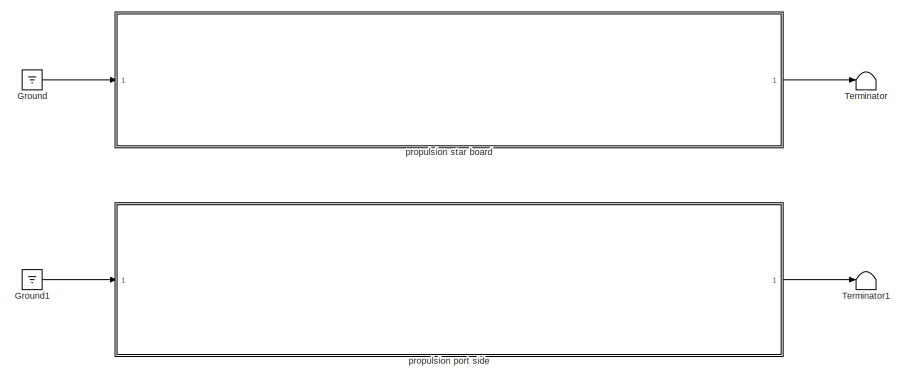
[diagram: root canvas - part 1/4, top center region]
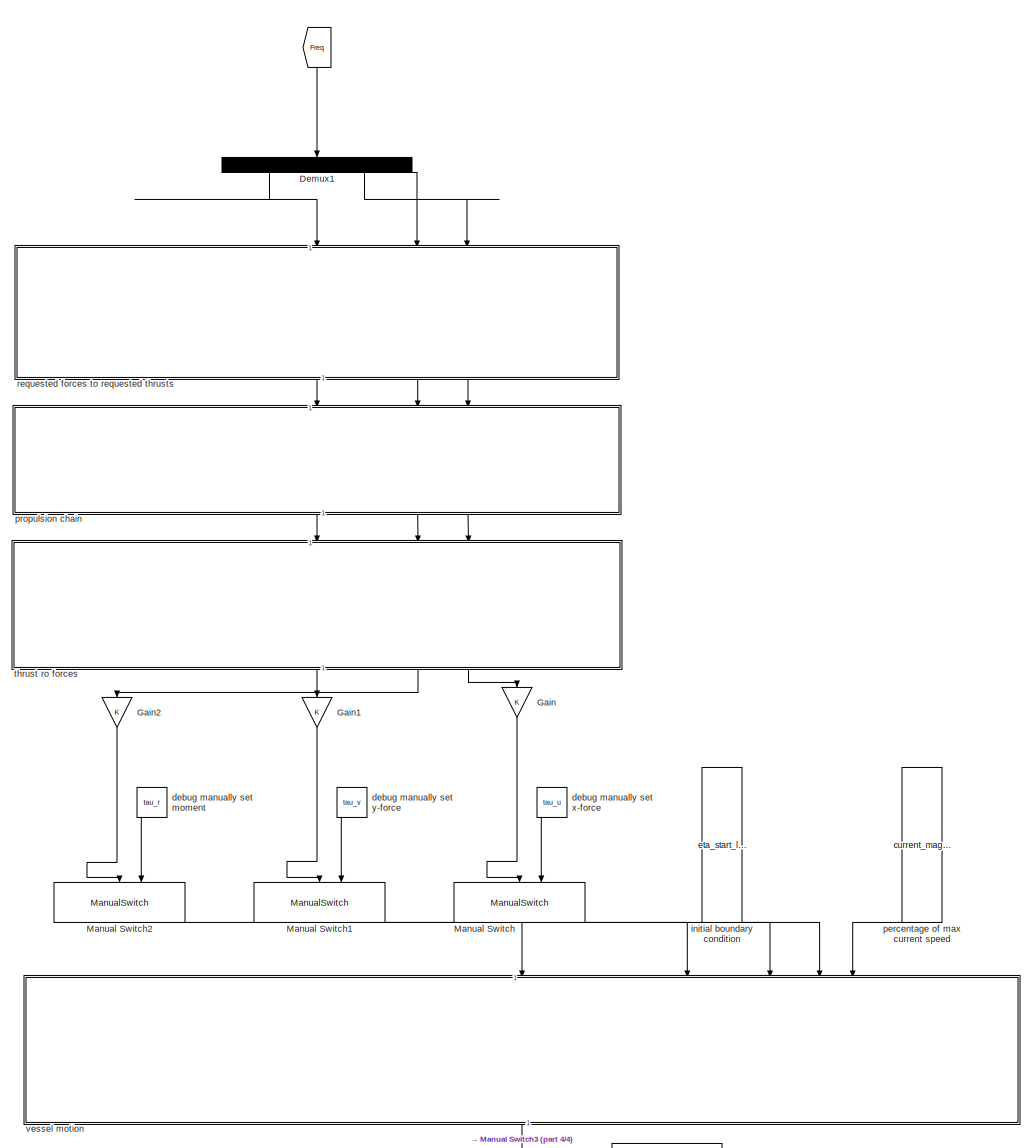
[diagram: root canvas - part 2/4, middle right region]
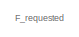
[diagram: root canvas - part 3/4, bottom left region]
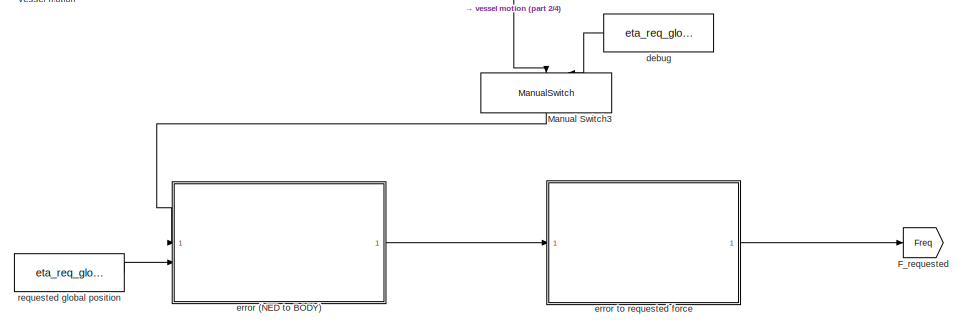
[diagram: root canvas - part 4/4, bottom right region]
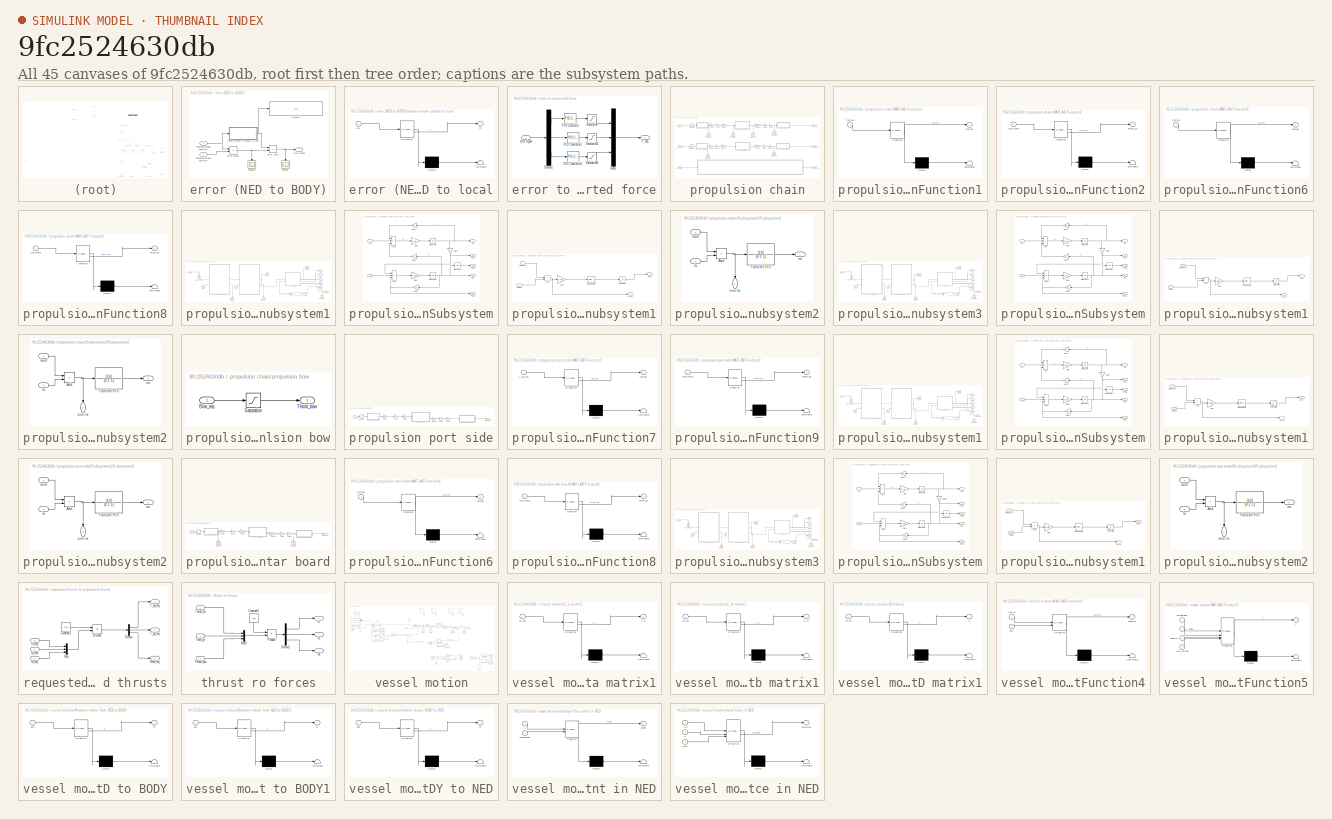
[diagram: thumbnail index - all 45 canvases of the model, root first then tree order]
MODEL slx_9fc2524630db
KIND model
CONFIG AbsTol = auto
CONFIG EnableMultiTasking = off
CONFIG FixedStep = auto
CONFIG MaxStep = auto
CONFIG MinStep = auto
CONFIG RelTol = 1e-3
CONFIG SampleTimeConstraint = Unconstrained
CONFIG SolverName = ode45
CONFIG StartTime = 0.0
CONFIG StopTime = 120
BLOCK [From]  
  GotoTag = Freq
  NameLocation = left
BLOCK [Demux] Demux1
  NameLocation = left
  Outputs = 3
BLOCK [Goto] F_requested
  GotoTag = Freq
BLOCK [Gain] Gain
  NameLocation = left
BLOCK [Gain] Gain1
  NameLocation = left
BLOCK [Gain] Gain2
  NameLocation = left
BLOCK [Ground] Ground
BLOCK [Ground] Ground1
BLOCK [ManualSwitch] Manual Switch
  NameLocation = left
BLOCK [ManualSwitch] Manual Switch1
  NameLocation = left
BLOCK [ManualSwitch] Manual Switch2
  NameLocation = left
BLOCK [ManualSwitch] Manual Switch3
  NameLocation = left
BLOCK [Terminator] Terminator
BLOCK [Terminator] Terminator1
BLOCK [Constant] debug
  NameLocation = top
  Value = eta_req_global
BLOCK [Constant] debug manually set moment
  NameLocation = left
  Value = tau_r
BLOCK [Constant] debug manually set x-force
  NameLocation = left
  Value = tau_u
BLOCK [Constant] debug manually set y-force
  NameLocation = left
  Value = tau_v
BLOCK [SubSystem] error (NED to BODY)
BLOCK [Display] error (NED to BODY)/Display
  Decimation = 1
BLOCK [Scope] error (NED to BODY)/Scope1
  Floating = off
  NameLocation = left
  NumInputPorts = 1
  ScopeSpecificationString = Simulink.scopes.TimeScopeBlockCfg('CurrentConfiguration', extmgr.ConfigurationSet(extmgr.Configuration('Core','General UI',true),extmgr.Configuration('Core','Source UI',true),extmgr.Configuration('Sources','WiredSimulink',true,'DataLoggingVariableName','ScopeData6'),extmgr.Configuration('Visuals','Time Domain',true,'SerializedDisplays',{struct('MinYLimReal','-1735.76584','MaxYLimReal','1528.06115'...<+1483ch>
BLOCK [Scope] error (NED to BODY)/Scope10
  Floating = off
  NameLocation = left
  NumInputPorts = 1
  ScopeSpecificationString = Simulink.scopes.TimeScopeBlockCfg('CurrentConfiguration', extmgr.ConfigurationSet(extmgr.Configuration('Core','General UI',true),extmgr.Configuration('Core','Source UI',true),extmgr.Configuration('Sources','WiredSimulink',true,'DataLoggingVariableName','ScopeData5'),extmgr.Configuration('Visuals','Time Domain',true,'SerializedDisplays',{struct('MinYLimReal','-0.44301','MaxYLimReal','3.53988','YLab...<+1652ch>
BLOCK [Sum] error (NED to BODY)/error global
  IconShape = rectangular
  Inputs = -+
BLOCK [Product] error (NED to BODY)/error local
  Multiplication = Matrix(*)
BLOCK [Outport] error (NED to BODY)/error signal
BLOCK [Inport] error (NED to BODY)/received global position 
BLOCK [Inport] error (NED to BODY)/requested global position
  Port = 2
BLOCK [SubSystem] error (NED to BODY)/rotation matrix global to local
  ErrorFcn = Stateflow.Translate.translate
  PermitHierarchicalResolution = ExplicitOnly
  SFBlockType = MATLAB Function
  TreatAsAtomicUnit = on
BLOCK [Demux] error (NED to BODY)/rotation matrix global to local/ Demux 
  Outputs = 1
BLOCK [S-Function] error (NED to BODY)/rotation matrix global to local/ SFunction 
  EnableBusSupport = on
  FunctionName = sf_sfun
  PortCounts = [1 2]
  SFcnIsStateOwnerBlock = off
  SFunctionDeploymentMode = off
  Tag = Stateflow S-Function 19
BLOCK [Terminator] error (NED to BODY)/rotation matrix global to local/ Terminator 
BLOCK [Outport] error (NED to BODY)/rotation matrix global to local/R
BLOCK [Inport] error (NED to BODY)/rotation matrix global to local/eta
BLOCK [SubSystem] error to requested force
BLOCK [Demux] error to requested force/Demux1
  Outputs = 3
BLOCK [Outport] error to requested force/F_req
BLOCK [Mux] error to requested force/Mux2
  DisplayOption = bar
  Inputs = 3
BLOCK [Reference] error to requested force/PID Controller  REF=slpidlib/PID Controller
  LibrarySourceBlock = simulink/Continuous/PID Controller
  SourceBlock = slpidlib/PID Controller
  SourceType = PID 1dof
BLOCK [Reference] error to requested force/PID Controller1  REF=slpidlib/PID Controller
  LibrarySourceBlock = simulink/Continuous/PID Controller
  SourceBlock = slpidlib/PID Controller
  SourceType = PID 1dof
BLOCK [Reference] error to requested force/PID Controller2  REF=slpidlib/PID Controller
  LibrarySourceBlock = simulink/Continuous/PID Controller
  SourceBlock = slpidlib/PID Controller
  SourceType = PID 1dof
BLOCK [Saturate] error to requested force/Saturation
  LowerLimit = -2.5
  UpperLimit = 2.5
BLOCK [Saturate] error to requested force/Saturation1
  LowerLimit = -2.5
  UpperLimit = 2.5
BLOCK [Saturate] error to requested force/Saturation2
  LowerLimit = -2
  UpperLimit = 2
BLOCK [Inport] error to requested force/error signal
BLOCK [Constant] initial boundary condition
  NameLocation = left
  Value = eta_start_local
BLOCK [Constant] percentage of max current speed
  NameLocation = left
  Value = current_magnitude_percentage
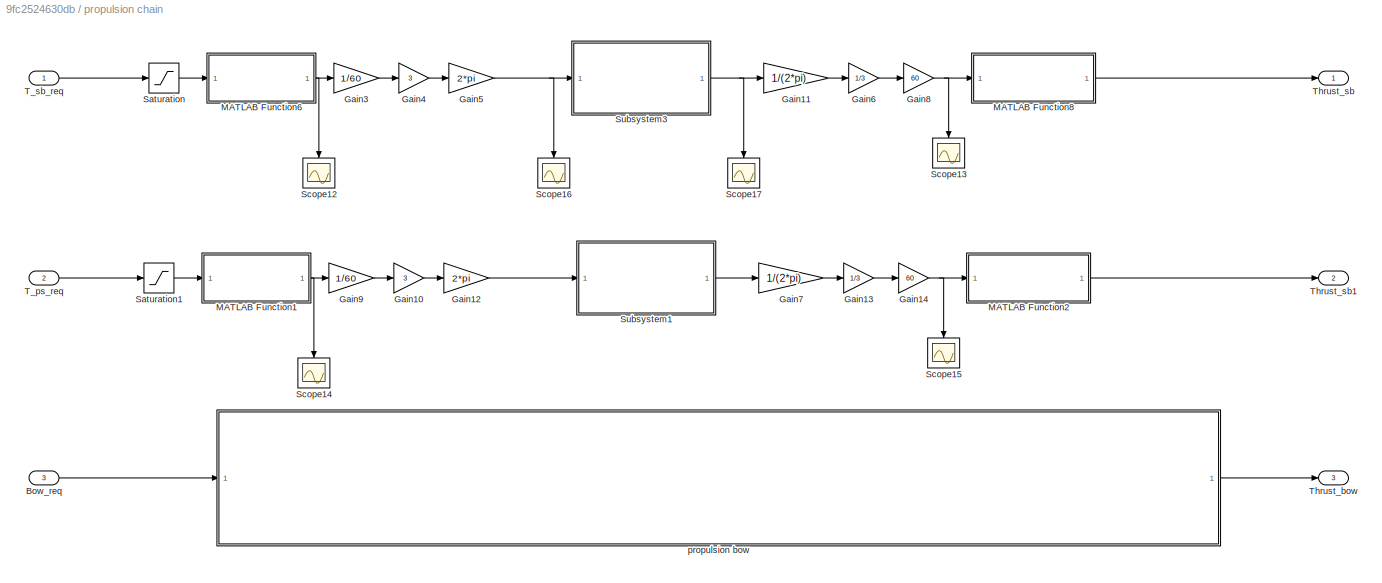
BLOCK [SubSystem] propulsion chain
  NameLocation = left
BLOCK [Inport] propulsion chain/Bow_req
  Port = 3
BLOCK [Gain] propulsion chain/Gain10
  Gain = 3
BLOCK [Gain] propulsion chain/Gain11
  Gain = 1/(2*pi)
BLOCK [Gain] propulsion chain/Gain12
  Gain = 2*pi
BLOCK [Gain] propulsion chain/Gain13
  Gain = 1/3
BLOCK [Gain] propulsion chain/Gain14
  Gain = 60
BLOCK [Gain] propulsion chain/Gain3
  Gain = 1/60
BLOCK [Gain] propulsion chain/Gain4
  Gain = 3
BLOCK [Gain] propulsion chain/Gain5
  Gain = 2*pi
BLOCK [Gain] propulsion chain/Gain6
  Gain = 1/3
BLOCK [Gain] propulsion chain/Gain7
  Gain = 1/(2*pi)
BLOCK [Gain] propulsion chain/Gain8
  Gain = 60
BLOCK [Gain] propulsion chain/Gain9
  Gain = 1/60
BLOCK [SubSystem] propulsion chain/MATLAB Function1
  ErrorFcn = Stateflow.Translate.translate
  PermitHierarchicalResolution = ExplicitOnly
  SFBlockType = MATLAB Function
  TreatAsAtomicUnit = on
BLOCK [Demux] propulsion chain/MATLAB Function1/ Demux 
  Outputs = 1
BLOCK [S-Function] propulsion chain/MATLAB Function1/ SFunction 
  EnableBusSupport = on
  FunctionName = sf_sfun
  PortCounts = [1 2]
  SFcnIsStateOwnerBlock = off
  SFunctionDeploymentMode = off
  Tag = Stateflow S-Function 3
BLOCK [Terminator] propulsion chain/MATLAB Function1/ Terminator 
BLOCK [Inport] propulsion chain/MATLAB Function1/T_sb_req
BLOCK [Outport] propulsion chain/MATLAB Function1/rpmreq
BLOCK [SubSystem] propulsion chain/MATLAB Function2
  ErrorFcn = Stateflow.Translate.translate
  PermitHierarchicalResolution = ExplicitOnly
  SFBlockType = MATLAB Function
  TreatAsAtomicUnit = on
BLOCK [Demux] propulsion chain/MATLAB Function2/ Demux 
  Outputs = 1
BLOCK [S-Function] propulsion chain/MATLAB Function2/ SFunction 
  EnableBusSupport = on
  FunctionName = sf_sfun
  PortCounts = [1 2]
  SFcnIsStateOwnerBlock = off
  SFunctionDeploymentMode = off
  Tag = Stateflow S-Function 4
BLOCK [Terminator] propulsion chain/MATLAB Function2/ Terminator 
BLOCK [Outport] propulsion chain/MATLAB Function2/Thrust_sb
BLOCK [Inport] propulsion chain/MATLAB Function2/rpm_motor
BLOCK [SubSystem] propulsion chain/MATLAB Function6
  ErrorFcn = Stateflow.Translate.translate
  PermitHierarchicalResolution = ExplicitOnly
  SFBlockType = MATLAB Function
  TreatAsAtomicUnit = on
BLOCK [Demux] propulsion chain/MATLAB Function6/ Demux 
  Outputs = 1
BLOCK [S-Function] propulsion chain/MATLAB Function6/ SFunction 
  EnableBusSupport = on
  FunctionName = sf_sfun
  PortCounts = [1 2]
  SFcnIsStateOwnerBlock = off
  SFunctionDeploymentMode = off
  Tag = Stateflow S-Function 1
BLOCK [Terminator] propulsion chain/MATLAB Function6/ Terminator 
BLOCK [Inport] propulsion chain/MATLAB Function6/T_sb_req
BLOCK [Outport] propulsion chain/MATLAB Function6/rpmreq
BLOCK [SubSystem] propulsion chain/MATLAB Function8
  ErrorFcn = Stateflow.Translate.translate
  PermitHierarchicalResolution = ExplicitOnly
  SFBlockType = MATLAB Function
  TreatAsAtomicUnit = on
BLOCK [Demux] propulsion chain/MATLAB Function8/ Demux 
  Outputs = 1
BLOCK [S-Function] propulsion chain/MATLAB Function8/ SFunction 
  EnableBusSupport = on
  FunctionName = sf_sfun
  PortCounts = [1 2]
  SFcnIsStateOwnerBlock = off
  SFunctionDeploymentMode = off
  Tag = Stateflow S-Function 2
BLOCK [Terminator] propulsion chain/MATLAB Function8/ Terminator 
BLOCK [Outport] propulsion chain/MATLAB Function8/Thrust_sb
BLOCK [Inport] propulsion chain/MATLAB Function8/rpm_motor
BLOCK [Saturate] propulsion chain/Saturation
  LowerLimit = -2.5
  UpperLimit = 2.5
BLOCK [Saturate] propulsion chain/Saturation1
  LowerLimit = -2.5
  UpperLimit = 2.5
BLOCK [Scope] propulsion chain/Scope12
  Floating = off
  NameLocation = left
  NumInputPorts = 1
  ScopeSpecificationString = Simulink.scopes.TimeScopeBlockCfg('CurrentConfiguration', extmgr.ConfigurationSet(extmgr.Configuration('Core','General UI',true),extmgr.Configuration('Core','Source UI',true),extmgr.Configuration('Sources','WiredSimulink',true,'DataLoggingVariableName','ScopeData1'),extmgr.Configuration('Visuals','Time Domain',true,'SerializedDisplays',{struct('MinYLimReal','-1632.31047','MaxYLimReal','1522.82083'...<+1454ch>
BLOCK [Scope] propulsion chain/Scope13
  Floating = off
  NameLocation = left
  NumInputPorts = 1
  ScopeSpecificationString = Simulink.scopes.TimeScopeBlockCfg('CurrentConfiguration', extmgr.ConfigurationSet(extmgr.Configuration('Core','General UI',true),extmgr.Configuration('Core','Source UI',true),extmgr.Configuration('Sources','WiredSimulink',true,'DataLoggingVariableName','ScopeData2'),extmgr.Configuration('Visuals','Time Domain',true,'SerializedDisplays',{struct('MinYLimReal','-1424.92607','MaxYLimReal','1338.00321'...<+1454ch>
BLOCK [Scope] propulsion chain/Scope14
  Floating = off
  NameLocation = left
  NumInputPorts = 1
  ScopeSpecificationString = Simulink.scopes.TimeScopeBlockCfg('CurrentConfiguration', extmgr.ConfigurationSet(extmgr.Configuration('Core','General UI',true),extmgr.Configuration('Core','Source UI',true),extmgr.Configuration('Sources','WiredSimulink',true,'DataLoggingVariableName','ScopeData3'),extmgr.Configuration('Visuals','Time Domain',true,'SerializedDisplays',{struct('MinYLimReal','-578.07206','MaxYLimReal','567.71884','...<+1446ch>
BLOCK [Scope] propulsion chain/Scope15
  Floating = off
  NameLocation = left
  NumInputPorts = 1
  ScopeSpecificationString = Simulink.scopes.TimeScopeBlockCfg('CurrentConfiguration', extmgr.ConfigurationSet(extmgr.Configuration('Core','General UI',true),extmgr.Configuration('Core','Source UI',true),extmgr.Configuration('Sources','WiredSimulink',true,'DataLoggingVariableName','ScopeData4'),extmgr.Configuration('Visuals','Time Domain',true,'SerializedDisplays',{struct('MinYLimReal','-578.07206','MaxYLimReal','567.71884','...<+1471ch>
BLOCK [Scope] propulsion chain/Scope16
  Floating = off
  NameLocation = left
  NumInputPorts = 1
  ScopeSpecificationString = Simulink.scopes.TimeScopeBlockCfg('CurrentConfiguration', extmgr.ConfigurationSet(extmgr.Configuration('Core','General UI',true),extmgr.Configuration('Core','Source UI',true),extmgr.Configuration('Sources','WiredSimulink',true,'DataLoggingVariableName','ScopeData1'),extmgr.Configuration('Visuals','Time Domain',true,'SerializedDisplays',{struct('MinYLimReal','-512.80546','MaxYLimReal','478.40827','...<+1435ch>
BLOCK [Scope] propulsion chain/Scope17
  Floating = off
  NameLocation = left
  NumInputPorts = 1
  ScopeSpecificationString = Simulink.scopes.TimeScopeBlockCfg('CurrentConfiguration', extmgr.ConfigurationSet(extmgr.Configuration('Core','General UI',true),extmgr.Configuration('Core','Source UI',true),extmgr.Configuration('Sources','WiredSimulink',true,'DataLoggingVariableName','ScopeData2'),extmgr.Configuration('Visuals','Time Domain',true,'SerializedDisplays',{struct('MinYLimReal','-97.0147','MaxYLimReal','399.94306','YL...<+1434ch>
BLOCK [SubSystem] propulsion chain/Subsystem1
BLOCK [From] propulsion chain/Subsystem1/From
  GotoTag = ia
BLOCK [From] propulsion chain/Subsystem1/From1
  GotoTag = wm
BLOCK [Gain] propulsion chain/Subsystem1/Gain
  Gain = -(Trat-CM*wm)/(wm^2)
  NameLocation = top
BLOCK [Inport] propulsion chain/Subsystem1/Omegaref
BLOCK [Scope] propulsion chain/Subsystem1/Scope2
  Floating = off
  NumInputPorts = 1
  ScopeSpecificationString = Simulink.scopes.TimeScopeBlockCfg('CurrentConfiguration', extmgr.ConfigurationSet(extmgr.Configuration('Core','General UI',true),extmgr.Configuration('Core','Source UI',true),extmgr.Configuration('Sources','WiredSimulink',true,'DataLoggingVariableName','ScopeData12'),extmgr.Configuration('Visuals','Time Domain',true,'SerializedDisplays',{struct('MinYLimReal','-18.24756','MaxYLimReal','164.228','YL...<+1424ch>
BLOCK [Math] propulsion chain/Subsystem1/Square
  NameLocation = top
  Operator = square
BLOCK [SubSystem] propulsion chain/Subsystem1/Subsystem
BLOCK [Sum] propulsion chain/Subsystem1/Subsystem/Add
  IconShape = rectangular
  Inputs = -+-
BLOCK [Sum] propulsion chain/Subsystem1/Subsystem/Add1
  IconShape = rectangular
  Inputs = ++-
BLOCK [Inport] propulsion chain/Subsystem1/Subsystem/E
BLOCK [Gain] propulsion chain/Subsystem1/Subsystem/Gain
  Gain = 1/La
BLOCK [Gain] propulsion chain/Subsystem1/Subsystem/Gain1
  Gain = Ra
  NameLocation = top
BLOCK [Gain] propulsion chain/Subsystem1/Subsystem/Gain2
  Gain = Kb
  NameLocation = top
BLOCK [Gain] propulsion chain/Subsystem1/Subsystem/Gain3
  Gain = Kt
  NameLocation = left
BLOCK [Gain] propulsion chain/Subsystem1/Subsystem/Gain4
  Gain = 1/Jm
BLOCK [Gain] propulsion chain/Subsystem1/Subsystem/Gain5
  Gain = CM
  NameLocation = top
BLOCK [Integrator] propulsion chain/Subsystem1/Subsystem/Integrator
BLOCK [Integrator] propulsion chain/Subsystem1/Subsystem/Integrator1
BLOCK [Integrator] propulsion chain/Subsystem1/Subsystem/Integrator2
BLOCK [Inport] propulsion chain/Subsystem1/Subsystem/T
  Port = 2
BLOCK [Outport] propulsion chain/Subsystem1/Subsystem/Tem
  Port = 4
BLOCK [Outport] propulsion chain/Subsystem1/Subsystem/Theta
  Port = 3
BLOCK [Outport] propulsion chain/Subsystem1/Subsystem/Tloss
  Port = 2
BLOCK [Outport] propulsion chain/Subsystem1/Subsystem/ia
BLOCK [Outport] propulsion chain/Subsystem1/Subsystem/wm
  Port = 5
BLOCK [SubSystem] propulsion chain/Subsystem1/Subsystem1
BLOCK [Sum] propulsion chain/Subsystem1/Subsystem1/Add
  IconShape = rectangular
  Inputs = +-
BLOCK [Gain] propulsion chain/Subsystem1/Subsystem1/Gain
  Gain = 1/wm
BLOCK [Outport] propulsion chain/Subsystem1/Subsystem1/Iaref
BLOCK [Inport] propulsion chain/Subsystem1/Subsystem1/Omega
  Port = 2
BLOCK [Inport] propulsion chain/Subsystem1/Subsystem1/Omegaref
BLOCK [Reference] propulsion chain/Subsystem1/Subsystem1/PID Controller  REF=slpidlib/PID Controller
  LibrarySourceBlock = simulink/Continuous/PID Controller
  SourceBlock = slpidlib/PID Controller
  SourceType = PID 1dof
BLOCK [Saturate] propulsion chain/Subsystem1/Subsystem1/Saturation
  LowerLimit = -9
  UpperLimit = 9
BLOCK [Outport] propulsion chain/Subsystem1/Subsystem1/error
  Port = 2
BLOCK [SubSystem] propulsion chain/Subsystem1/Subsystem2
BLOCK [Sum] propulsion chain/Subsystem1/Subsystem2/Add
  IconShape = rectangular
  Inputs = +-
BLOCK [Inport] propulsion chain/Subsystem1/Subsystem2/Ia
  Port = 2
BLOCK [Inport] propulsion chain/Subsystem1/Subsystem2/Iaref
BLOCK [TransferFcn] propulsion chain/Subsystem1/Subsystem2/Transfer Fcn
  Denominator = [0.1 1]
  Numerator = [10]
BLOCK [Outport] propulsion chain/Subsystem1/Subsystem2/ea
BLOCK [Outport] propulsion chain/Subsystem1/Subsystem2/error Ia
  NameLocation = left
  Port = 2
BLOCK [Goto] propulsion chain/Subsystem1/Tem
  GotoTag = Tem
BLOCK [Goto] propulsion chain/Subsystem1/Tem1
  GotoTag = wm
BLOCK [Goto] propulsion chain/Subsystem1/Theta
  GotoTag = Theta
BLOCK [Goto] propulsion chain/Subsystem1/Tloss
  GotoTag = Tloss
BLOCK [Scope] propulsion chain/Subsystem1/emoga motor
  Floating = off
  NameLocation = left
  NumInputPorts = 1
  ScopeSpecificationString = Simulink.scopes.TimeScopeBlockCfg('CurrentConfiguration', extmgr.ConfigurationSet(extmgr.Configuration('Core','General UI',true),extmgr.Configuration('Core','Source UI',true),extmgr.Configuration('Sources','WiredSimulink',true,'DataLoggingVariableName','ScopeData6'),extmgr.Configuration('Visuals','Time Domain',true,'SerializedDisplays',{struct('MinYLimReal','-162.51263','MaxYLimReal','602.60995','...<+1460ch>
BLOCK [Scope] propulsion chain/Subsystem1/error current
  Floating = off
  NameLocation = left
  NumInputPorts = 1
  ScopeSpecificationString = Simulink.scopes.TimeScopeBlockCfg('CurrentConfiguration', extmgr.ConfigurationSet(extmgr.Configuration('Core','General UI',true),extmgr.Configuration('Core','Source UI',true),extmgr.Configuration('Sources','WiredSimulink',true,'DataLoggingVariableName','ScopeData7'),extmgr.Configuration('Visuals','Time Domain',true,'SerializedDisplays',{struct('MinYLimReal','-165.95569','MaxYLimReal','618.43952','...<+1460ch>
BLOCK [Scope] propulsion chain/Subsystem1/error omega
  Floating = off
  NameLocation = left
  NumInputPorts = 1
  ScopeSpecificationString = Simulink.scopes.TimeScopeBlockCfg('CurrentConfiguration', extmgr.ConfigurationSet(extmgr.Configuration('Core','General UI',true),extmgr.Configuration('Core','Source UI',true),extmgr.Configuration('Sources','WiredSimulink',true,'DataLoggingVariableName','ScopeData8'),extmgr.Configuration('Visuals','Time Domain',true,'SerializedDisplays',{struct('MinYLimReal','-185.3207','MaxYLimReal','465.03563','Y...<+1460ch>
BLOCK [Goto] propulsion chain/Subsystem1/ia
  GotoTag = ia
BLOCK [Scope] propulsion chain/Subsystem1/ia monitor
  Floating = off
  NumInputPorts = 1
  ScopeSpecificationString = Simulink.scopes.TimeScopeBlockCfg('CurrentConfiguration', extmgr.ConfigurationSet(extmgr.Configuration('Core','General UI',true),extmgr.Configuration('Core','Source UI',true),extmgr.Configuration('Sources','WiredSimulink',true,'DataLoggingVariableName','ScopeData9'),extmgr.Configuration('Visuals','Time Domain',true,'SerializedDisplays',{struct('MinYLimReal','-0.08479','MaxYLimReal','0.76314','YLab...<+1421ch>
BLOCK [Outport] propulsion chain/Subsystem1/omega motor
BLOCK [Scope] propulsion chain/Subsystem1/omegachecker
  Floating = off
  NameLocation = left
  NumInputPorts = 1
  ScopeSpecificationString = Simulink.scopes.TimeScopeBlockCfg('CurrentConfiguration', extmgr.ConfigurationSet(extmgr.Configuration('Core','General UI',true),extmgr.Configuration('Core','Source UI',true),extmgr.Configuration('Sources','WiredSimulink',true,'DataLoggingVariableName','ScopeData10'),extmgr.Configuration('Visuals','Time Domain',true,'SerializedDisplays',{struct('MinYLimReal','-33.125','MaxYLimReal','448.125','YLab...<+1446ch>
BLOCK [SubSystem] propulsion chain/Subsystem3
BLOCK [From] propulsion chain/Subsystem3/From
  GotoTag = ia
BLOCK [From] propulsion chain/Subsystem3/From1
  GotoTag = wm
BLOCK [Gain] propulsion chain/Subsystem3/Gain
  Gain = -(Trat-CM*wm)/(wm^2)
  NameLocation = top
BLOCK [Inport] propulsion chain/Subsystem3/Omegaref
BLOCK [Scope] propulsion chain/Subsystem3/Scope2
  Floating = off
  NumInputPorts = 1
  ScopeSpecificationString = Simulink.scopes.TimeScopeBlockCfg('CurrentConfiguration', extmgr.ConfigurationSet(extmgr.Configuration('Core','General UI',true),extmgr.Configuration('Core','Source UI',true),extmgr.Configuration('Sources','WiredSimulink',true,'DataLoggingVariableName','ScopeData11'),extmgr.Configuration('Visuals','Time Domain',true,'SerializedDisplays',{struct('MinYLimReal','-18.24756','MaxYLimReal','164.228','YL...<+1424ch>
BLOCK [Math] propulsion chain/Subsystem3/Square
  NameLocation = top
  Operator = square
BLOCK [SubSystem] propulsion chain/Subsystem3/Subsystem
BLOCK [Sum] propulsion chain/Subsystem3/Subsystem/Add
  IconShape = rectangular
  Inputs = -+-
BLOCK [Sum] propulsion chain/Subsystem3/Subsystem/Add1
  IconShape = rectangular
  Inputs = ++-
BLOCK [Inport] propulsion chain/Subsystem3/Subsystem/E
BLOCK [Gain] propulsion chain/Subsystem3/Subsystem/Gain
  Gain = 1/La
BLOCK [Gain] propulsion chain/Subsystem3/Subsystem/Gain1
  Gain = Ra
  NameLocation = top
BLOCK [Gain] propulsion chain/Subsystem3/Subsystem/Gain2
  Gain = Kb
  NameLocation = top
BLOCK [Gain] propulsion chain/Subsystem3/Subsystem/Gain3
  Gain = Kt
  NameLocation = left
BLOCK [Gain] propulsion chain/Subsystem3/Subsystem/Gain4
  Gain = 1/Jm
BLOCK [Gain] propulsion chain/Subsystem3/Subsystem/Gain5
  Gain = CM
  NameLocation = top
BLOCK [Integrator] propulsion chain/Subsystem3/Subsystem/Integrator
BLOCK [Integrator] propulsion chain/Subsystem3/Subsystem/Integrator1
BLOCK [Integrator] propulsion chain/Subsystem3/Subsystem/Integrator2
BLOCK [Inport] propulsion chain/Subsystem3/Subsystem/T
  Port = 2
BLOCK [Outport] propulsion chain/Subsystem3/Subsystem/Tem
  Port = 4
BLOCK [Outport] propulsion chain/Subsystem3/Subsystem/Theta
  Port = 3
BLOCK [Outport] propulsion chain/Subsystem3/Subsystem/Tloss
  Port = 2
BLOCK [Outport] propulsion chain/Subsystem3/Subsystem/ia
BLOCK [Outport] propulsion chain/Subsystem3/Subsystem/wm
  Port = 5
BLOCK [SubSystem] propulsion chain/Subsystem3/Subsystem1
BLOCK [Sum] propulsion chain/Subsystem3/Subsystem1/Add
  IconShape = rectangular
  Inputs = +-
BLOCK [Gain] propulsion chain/Subsystem3/Subsystem1/Gain
  Gain = 1/wm
BLOCK [Outport] propulsion chain/Subsystem3/Subsystem1/Iaref
BLOCK [Inport] propulsion chain/Subsystem3/Subsystem1/Omega
  Port = 2
BLOCK [Inport] propulsion chain/Subsystem3/Subsystem1/Omegaref
BLOCK [Reference] propulsion chain/Subsystem3/Subsystem1/PID Controller  REF=slpidlib/PID Controller
  LibrarySourceBlock = simulink/Continuous/PID Controller
  SourceBlock = slpidlib/PID Controller
  SourceType = PID 1dof
BLOCK [Saturate] propulsion chain/Subsystem3/Subsystem1/Saturation
  LowerLimit = -9
  UpperLimit = 9
BLOCK [Outport] propulsion chain/Subsystem3/Subsystem1/error
  Port = 2
BLOCK [SubSystem] propulsion chain/Subsystem3/Subsystem2
BLOCK [Sum] propulsion chain/Subsystem3/Subsystem2/Add
  IconShape = rectangular
  Inputs = +-
BLOCK [Inport] propulsion chain/Subsystem3/Subsystem2/Ia
  Port = 2
BLOCK [Inport] propulsion chain/Subsystem3/Subsystem2/Iaref
BLOCK [TransferFcn] propulsion chain/Subsystem3/Subsystem2/Transfer Fcn
  Denominator = [0.1 1]
  Numerator = [10]
BLOCK [Outport] propulsion chain/Subsystem3/Subsystem2/ea
BLOCK [Outport] propulsion chain/Subsystem3/Subsystem2/error Ia
  NameLocation = left
  Port = 2
BLOCK [Goto] propulsion chain/Subsystem3/Tem
  GotoTag = Tem
BLOCK [Goto] propulsion chain/Subsystem3/Tem1
  GotoTag = wm
BLOCK [Goto] propulsion chain/Subsystem3/Theta
  GotoTag = Theta
BLOCK [Goto] propulsion chain/Subsystem3/Tloss
  GotoTag = Tloss
BLOCK [Scope] propulsion chain/Subsystem3/emoga motor
  Floating = off
  NameLocation = left
  NumInputPorts = 1
  ScopeSpecificationString = Simulink.scopes.TimeScopeBlockCfg('CurrentConfiguration', extmgr.ConfigurationSet(extmgr.Configuration('Core','General UI',true),extmgr.Configuration('Core','Source UI',true),extmgr.Configuration('Sources','WiredSimulink',true,'DataLoggingVariableName','ScopeData5'),extmgr.Configuration('Visuals','Time Domain',true,'SerializedDisplays',{struct('MinYLimReal','-2677.86124','MaxYLimReal','774.09974',...<+1466ch>
BLOCK [Scope] propulsion chain/Subsystem3/error current
  Floating = off
  NameLocation = left
  NumInputPorts = 1
  ScopeSpecificationString = Simulink.scopes.TimeScopeBlockCfg('CurrentConfiguration', extmgr.ConfigurationSet(extmgr.Configuration('Core','General UI',true),extmgr.Configuration('Core','Source UI',true),extmgr.Configuration('Sources','WiredSimulink',true,'DataLoggingVariableName','ScopeData2'),extmgr.Configuration('Visuals','Time Domain',true,'SerializedDisplays',{struct('MinYLimReal','-165.95569','MaxYLimReal','618.43952','...<+1460ch>
BLOCK [Scope] propulsion chain/Subsystem3/error omega
  Floating = off
  NameLocation = left
  NumInputPorts = 1
  ScopeSpecificationString = Simulink.scopes.TimeScopeBlockCfg('CurrentConfiguration', extmgr.ConfigurationSet(extmgr.Configuration('Core','General UI',true),extmgr.Configuration('Core','Source UI',true),extmgr.Configuration('Sources','WiredSimulink',true,'DataLoggingVariableName','ScopeData3'),extmgr.Configuration('Visuals','Time Domain',true,'SerializedDisplays',{struct('MinYLimReal','-1318.55744','MaxYLimReal','3190.81628'...<+1470ch>
BLOCK [Goto] propulsion chain/Subsystem3/ia
  GotoTag = ia
BLOCK [Scope] propulsion chain/Subsystem3/ia monitor
  Floating = off
  NumInputPorts = 1
  ScopeSpecificationString = Simulink.scopes.TimeScopeBlockCfg('CurrentConfiguration', extmgr.ConfigurationSet(extmgr.Configuration('Core','General UI',true),extmgr.Configuration('Core','Source UI',true),extmgr.Configuration('Sources','WiredSimulink',true,'DataLoggingVariableName','ScopeData1'),extmgr.Configuration('Visuals','Time Domain',true,'SerializedDisplays',{struct('MinYLimReal','-0.08479','MaxYLimReal','0.76314','YLab...<+1421ch>
BLOCK [Outport] propulsion chain/Subsystem3/omega motor
BLOCK [Scope] propulsion chain/Subsystem3/omegachecker
  Floating = off
  NameLocation = left
  NumInputPorts = 1
  ScopeSpecificationString = Simulink.scopes.TimeScopeBlockCfg('CurrentConfiguration', extmgr.ConfigurationSet(extmgr.Configuration('Core','General UI',true),extmgr.Configuration('Core','Source UI',true),extmgr.Configuration('Sources','WiredSimulink',true,'DataLoggingVariableName','ScopeData4'),extmgr.Configuration('Visuals','Time Domain',true,'SerializedDisplays',{struct('MinYLimReal','-548.84619','MaxYLimReal','513.44265','...<+1458ch>
BLOCK [Inport] propulsion chain/T_ps_req
  Port = 2
BLOCK [Inport] propulsion chain/T_sb_req
BLOCK [Outport] propulsion chain/Thrust_bow
  Port = 3
BLOCK [Outport] propulsion chain/Thrust_sb
BLOCK [Outport] propulsion chain/Thrust_sb1
  Port = 2
BLOCK [SubSystem] propulsion chain/propulsion bow
BLOCK [Inport] propulsion chain/propulsion bow/Bow_req
BLOCK [Saturate] propulsion chain/propulsion bow/Saturation
  LowerLimit = -2
  UpperLimit = 2
BLOCK [Outport] propulsion chain/propulsion bow/Thrust_bow
BLOCK [SubSystem] propulsion port side
BLOCK [Gain] propulsion port side/Gain1
  Gain = 1/60
BLOCK [Gain] propulsion port side/Gain10
  Gain = 1/(2*pi)
BLOCK [Gain] propulsion port side/Gain3
  Gain = 3
BLOCK [Gain] propulsion port side/Gain5
  Gain = 2*pi
BLOCK [Gain] propulsion port side/Gain7
  Gain = 1/3
BLOCK [Gain] propulsion port side/Gain9
  Gain = 60
BLOCK [SubSystem] propulsion port side/MATLAB Function7
  ErrorFcn = Stateflow.Translate.translate
  PermitHierarchicalResolution = ExplicitOnly
  SFBlockType = MATLAB Function
  TreatAsAtomicUnit = on
BLOCK [Demux] propulsion port side/MATLAB Function7/ Demux 
  Outputs = 1
BLOCK [S-Function] propulsion port side/MATLAB Function7/ SFunction 
  EnableBusSupport = on
  FunctionName = sf_sfun
  PortCounts = [1 2]
  SFcnIsStateOwnerBlock = off
  SFunctionDeploymentMode = off
  Tag = Stateflow S-Function 11
BLOCK [Terminator] propulsion port side/MATLAB Function7/ Terminator 
BLOCK [Inport] propulsion port side/MATLAB Function7/T_ps_req
BLOCK [Outport] propulsion port side/MATLAB Function7/rpmreq
BLOCK [SubSystem] propulsion port side/MATLAB Function9
  ErrorFcn = Stateflow.Translate.translate
  PermitHierarchicalResolution = ExplicitOnly
  SFBlockType = MATLAB Function
  TreatAsAtomicUnit = on
BLOCK [Demux] propulsion port side/MATLAB Function9/ Demux 
  Outputs = 1
BLOCK [S-Function] propulsion port side/MATLAB Function9/ SFunction 
  EnableBusSupport = on
  FunctionName = sf_sfun
  PortCounts = [1 2]
  SFcnIsStateOwnerBlock = off
  SFunctionDeploymentMode = off
  Tag = Stateflow S-Function 13
BLOCK [Terminator] propulsion port side/MATLAB Function9/ Terminator 
BLOCK [Outport] propulsion port side/MATLAB Function9/Thrust_ps
BLOCK [Inport] propulsion port side/MATLAB Function9/rpm_motor
BLOCK [Saturate] propulsion port side/Saturation
  LowerLimit = -3
  UpperLimit = 3
BLOCK [SubSystem] propulsion port side/Subsystem1
BLOCK [From] propulsion port side/Subsystem1/From
  GotoTag = ia
BLOCK [From] propulsion port side/Subsystem1/From1
  GotoTag = wm
BLOCK [Gain] propulsion port side/Subsystem1/Gain
  Gain = -(Trat-CM*wm)/(wm^2)
  NameLocation = top
BLOCK [Inport] propulsion port side/Subsystem1/Omegaref
BLOCK [Scope] propulsion port side/Subsystem1/Scope2
  Floating = off
  NumInputPorts = 1
  ScopeSpecificationString = Simulink.scopes.TimeScopeBlockCfg('CurrentConfiguration', extmgr.ConfigurationSet(extmgr.Configuration('Core','General UI',true),extmgr.Configuration('Core','Source UI',true),extmgr.Configuration('Sources','WiredSimulink',true,'DataLoggingVariableName','ScopeData12'),extmgr.Configuration('Visuals','Time Domain',true,'SerializedDisplays',{struct('MinYLimReal','-18.24756','MaxYLimReal','164.228','YL...<+1424ch>
BLOCK [Math] propulsion port side/Subsystem1/Square
  NameLocation = top
  Operator = square
BLOCK [SubSystem] propulsion port side/Subsystem1/Subsystem
BLOCK [Sum] propulsion port side/Subsystem1/Subsystem/Add
  IconShape = rectangular
  Inputs = -+-
BLOCK [Sum] propulsion port side/Subsystem1/Subsystem/Add1
  IconShape = rectangular
  Inputs = ++-
BLOCK [Inport] propulsion port side/Subsystem1/Subsystem/E
BLOCK [Gain] propulsion port side/Subsystem1/Subsystem/Gain
  Gain = 1/La
BLOCK [Gain] propulsion port side/Subsystem1/Subsystem/Gain1
  Gain = Ra
  NameLocation = top
BLOCK [Gain] propulsion port side/Subsystem1/Subsystem/Gain2
  Gain = Kb
  NameLocation = top
BLOCK [Gain] propulsion port side/Subsystem1/Subsystem/Gain3
  Gain = Kt
  NameLocation = left
BLOCK [Gain] propulsion port side/Subsystem1/Subsystem/Gain4
  Gain = 1/Jm
BLOCK [Gain] propulsion port side/Subsystem1/Subsystem/Gain5
  Gain = CM
  NameLocation = top
BLOCK [Integrator] propulsion port side/Subsystem1/Subsystem/Integrator
BLOCK [Integrator] propulsion port side/Subsystem1/Subsystem/Integrator1
BLOCK [Integrator] propulsion port side/Subsystem1/Subsystem/Integrator2
BLOCK [Inport] propulsion port side/Subsystem1/Subsystem/T
  Port = 2
BLOCK [Outport] propulsion port side/Subsystem1/Subsystem/Tem
  Port = 4
BLOCK [Outport] propulsion port side/Subsystem1/Subsystem/Theta
  Port = 3
BLOCK [Outport] propulsion port side/Subsystem1/Subsystem/Tloss
  Port = 2
BLOCK [Outport] propulsion port side/Subsystem1/Subsystem/ia
BLOCK [Outport] propulsion port side/Subsystem1/Subsystem/wm
  Port = 5
BLOCK [SubSystem] propulsion port side/Subsystem1/Subsystem1
BLOCK [Sum] propulsion port side/Subsystem1/Subsystem1/Add
  IconShape = rectangular
  Inputs = +-
BLOCK [Gain] propulsion port side/Subsystem1/Subsystem1/Gain
  Gain = 1/wm
BLOCK [Outport] propulsion port side/Subsystem1/Subsystem1/Iaref
BLOCK [Inport] propulsion port side/Subsystem1/Subsystem1/Omega
  Port = 2
BLOCK [Inport] propulsion port side/Subsystem1/Subsystem1/Omegaref
BLOCK [Reference] propulsion port side/Subsystem1/Subsystem1/PID Controller  REF=slpidlib/PID Controller
  LibrarySourceBlock = simulink/Continuous/PID Controller
  SourceBlock = slpidlib/PID Controller
  SourceType = PID 1dof
BLOCK [Saturate] propulsion port side/Subsystem1/Subsystem1/Saturation
  LowerLimit = -9
  UpperLimit = 9
BLOCK [Outport] propulsion port side/Subsystem1/Subsystem1/error
  Port = 2
BLOCK [SubSystem] propulsion port side/Subsystem1/Subsystem2
BLOCK [Sum] propulsion port side/Subsystem1/Subsystem2/Add
  IconShape = rectangular
  Inputs = +-
BLOCK [Inport] propulsion port side/Subsystem1/Subsystem2/Ia
  Port = 2
BLOCK [Inport] propulsion port side/Subsystem1/Subsystem2/Iaref
BLOCK [TransferFcn] propulsion port side/Subsystem1/Subsystem2/Transfer Fcn
  Denominator = [0.1 1]
  Numerator = [10]
BLOCK [Outport] propulsion port side/Subsystem1/Subsystem2/ea
BLOCK [Outport] propulsion port side/Subsystem1/Subsystem2/error Ia
  NameLocation = left
  Port = 2
BLOCK [Goto] propulsion port side/Subsystem1/Tem
  GotoTag = Tem
BLOCK [Goto] propulsion port side/Subsystem1/Tem1
  GotoTag = wm
BLOCK [Goto] propulsion port side/Subsystem1/Theta
  GotoTag = Theta
BLOCK [Goto] propulsion port side/Subsystem1/Tloss
  GotoTag = Tloss
BLOCK [Scope] propulsion port side/Subsystem1/emoga motor
  Floating = off
  NameLocation = left
  NumInputPorts = 1
  ScopeSpecificationString = Simulink.scopes.TimeScopeBlockCfg('CurrentConfiguration', extmgr.ConfigurationSet(extmgr.Configuration('Core','General UI',true),extmgr.Configuration('Core','Source UI',true),extmgr.Configuration('Sources','WiredSimulink',true,'DataLoggingVariableName','ScopeData6'),extmgr.Configuration('Visuals','Time Domain',true,'SerializedDisplays',{struct('MinYLimReal','-162.51263','MaxYLimReal','602.60995','...<+1460ch>
BLOCK [Scope] propulsion port side/Subsystem1/error current
  Floating = off
  NameLocation = left
  NumInputPorts = 1
  ScopeSpecificationString = Simulink.scopes.TimeScopeBlockCfg('CurrentConfiguration', extmgr.ConfigurationSet(extmgr.Configuration('Core','General UI',true),extmgr.Configuration('Core','Source UI',true),extmgr.Configuration('Sources','WiredSimulink',true,'DataLoggingVariableName','ScopeData7'),extmgr.Configuration('Visuals','Time Domain',true,'SerializedDisplays',{struct('MinYLimReal','-165.95569','MaxYLimReal','618.43952','...<+1460ch>
BLOCK [Scope] propulsion port side/Subsystem1/error omega
  Floating = off
  NameLocation = left
  NumInputPorts = 1
  ScopeSpecificationString = Simulink.scopes.TimeScopeBlockCfg('CurrentConfiguration', extmgr.ConfigurationSet(extmgr.Configuration('Core','General UI',true),extmgr.Configuration('Core','Source UI',true),extmgr.Configuration('Sources','WiredSimulink',true,'DataLoggingVariableName','ScopeData8'),extmgr.Configuration('Visuals','Time Domain',true,'SerializedDisplays',{struct('MinYLimReal','-185.3207','MaxYLimReal','465.03563','Y...<+1460ch>
BLOCK [Goto] propulsion port side/Subsystem1/ia
  GotoTag = ia
BLOCK [Scope] propulsion port side/Subsystem1/ia monitor
  Floating = off
  NumInputPorts = 1
  ScopeSpecificationString = Simulink.scopes.TimeScopeBlockCfg('CurrentConfiguration', extmgr.ConfigurationSet(extmgr.Configuration('Core','General UI',true),extmgr.Configuration('Core','Source UI',true),extmgr.Configuration('Sources','WiredSimulink',true,'DataLoggingVariableName','ScopeData9'),extmgr.Configuration('Visuals','Time Domain',true,'SerializedDisplays',{struct('MinYLimReal','-0.08479','MaxYLimReal','0.76314','YLab...<+1421ch>
BLOCK [Outport] propulsion port side/Subsystem1/omega motor
BLOCK [Scope] propulsion port side/Subsystem1/omegachecker
  Floating = off
  NameLocation = left
  NumInputPorts = 1
  ScopeSpecificationString = Simulink.scopes.TimeScopeBlockCfg('CurrentConfiguration', extmgr.ConfigurationSet(extmgr.Configuration('Core','General UI',true),extmgr.Configuration('Core','Source UI',true),extmgr.Configuration('Sources','WiredSimulink',true,'DataLoggingVariableName','ScopeData10'),extmgr.Configuration('Visuals','Time Domain',true,'SerializedDisplays',{struct('MinYLimReal','-33.125','MaxYLimReal','448.125','YLab...<+1446ch>
BLOCK [Inport] propulsion port side/T_ps_req
BLOCK [Outport] propulsion port side/Thrust_ps
BLOCK [SubSystem] propulsion star board
BLOCK [Gain] propulsion star board/Gain
  Gain = 1/60
BLOCK [Gain] propulsion star board/Gain11
  Gain = 1/(2*pi)
BLOCK [Gain] propulsion star board/Gain2
  Gain = 3
BLOCK [Gain] propulsion star board/Gain4
  Gain = 2*pi
BLOCK [Gain] propulsion star board/Gain6
  Gain = 1/3
BLOCK [Gain] propulsion star board/Gain8
  Gain = 60
BLOCK [SubSystem] propulsion star board/MATLAB Function6
  ErrorFcn = Stateflow.Translate.translate
  PermitHierarchicalResolution = ExplicitOnly
  SFBlockType = MATLAB Function
  TreatAsAtomicUnit = on
BLOCK [Demux] propulsion star board/MATLAB Function6/ Demux 
  Outputs = 1
BLOCK [S-Function] propulsion star board/MATLAB Function6/ SFunction 
  EnableBusSupport = on
  FunctionName = sf_sfun
  PortCounts = [1 2]
  SFcnIsStateOwnerBlock = off
  SFunctionDeploymentMode = off
  Tag = Stateflow S-Function 10
BLOCK [Terminator] propulsion star board/MATLAB Function6/ Terminator 
BLOCK [Inport] propulsion star board/MATLAB Function6/T_sb_req
BLOCK [Outport] propulsion star board/MATLAB Function6/rpmreq
BLOCK [SubSystem] propulsion star board/MATLAB Function8
  ErrorFcn = Stateflow.Translate.translate
  PermitHierarchicalResolution = ExplicitOnly
  SFBlockType = MATLAB Function
  TreatAsAtomicUnit = on
BLOCK [Demux] propulsion star board/MATLAB Function8/ Demux 
  Outputs = 1
BLOCK [S-Function] propulsion star board/MATLAB Function8/ SFunction 
  EnableBusSupport = on
  FunctionName = sf_sfun
  PortCounts = [1 2]
  SFcnIsStateOwnerBlock = off
  SFunctionDeploymentMode = off
  Tag = Stateflow S-Function 12
BLOCK [Terminator] propulsion star board/MATLAB Function8/ Terminator 
BLOCK [Outport] propulsion star board/MATLAB Function8/Thrust_sb
BLOCK [Inport] propulsion star board/MATLAB Function8/rpm_motor
BLOCK [Saturate] propulsion star board/Saturation
  LowerLimit = -3
  UpperLimit = 3
BLOCK [Scope] propulsion star board/Scope1
  Floating = off
  NameLocation = left
  NumInputPorts = 1
  ScopeSpecificationString = Simulink.scopes.TimeScopeBlockCfg('CurrentConfiguration', extmgr.ConfigurationSet(extmgr.Configuration('Core','General UI',true),extmgr.Configuration('Core','Source UI',true),extmgr.Configuration('Sources','WiredSimulink',true,'DataLoggingVariableName','ScopeData8'),extmgr.Configuration('Visuals','Time Domain',true,'SerializedDisplays',{struct('MinYLimReal','76.62367','MaxYLimReal','96.62367','YLa...<+1438ch>
BLOCK [Scope] propulsion star board/Scope8
  Floating = off
  NameLocation = left
  NumInputPorts = 1
  ScopeSpecificationString = Simulink.scopes.TimeScopeBlockCfg('CurrentConfiguration', extmgr.ConfigurationSet(extmgr.Configuration('Core','General UI',true),extmgr.Configuration('Core','Source UI',true),extmgr.Configuration('Sources','WiredSimulink',true,'DataLoggingVariableName','ScopeData7'),extmgr.Configuration('Visuals','Time Domain',true,'SerializedDisplays',{struct('MinYLimReal','-18.24756','MaxYLimReal','164.228','YLa...<+1423ch>
BLOCK [SubSystem] propulsion star board/Subsystem3
BLOCK [From] propulsion star board/Subsystem3/From
  GotoTag = ia
BLOCK [From] propulsion star board/Subsystem3/From1
  GotoTag = wm
BLOCK [Gain] propulsion star board/Subsystem3/Gain
  Gain = -(Trat-CM*wm)/(wm^2)
  NameLocation = top
BLOCK [Inport] propulsion star board/Subsystem3/Omegaref
BLOCK [Scope] propulsion star board/Subsystem3/Scope2
  Floating = off
  NumInputPorts = 1
  ScopeSpecificationString = Simulink.scopes.TimeScopeBlockCfg('CurrentConfiguration', extmgr.ConfigurationSet(extmgr.Configuration('Core','General UI',true),extmgr.Configuration('Core','Source UI',true),extmgr.Configuration('Sources','WiredSimulink',true,'DataLoggingVariableName','ScopeData11'),extmgr.Configuration('Visuals','Time Domain',true,'SerializedDisplays',{struct('MinYLimReal','-18.24756','MaxYLimReal','164.228','YL...<+1424ch>
BLOCK [Math] propulsion star board/Subsystem3/Square
  NameLocation = top
  Operator = square
BLOCK [SubSystem] propulsion star board/Subsystem3/Subsystem
BLOCK [Sum] propulsion star board/Subsystem3/Subsystem/Add
  IconShape = rectangular
  Inputs = -+-
BLOCK [Sum] propulsion star board/Subsystem3/Subsystem/Add1
  IconShape = rectangular
  Inputs = ++-
BLOCK [Inport] propulsion star board/Subsystem3/Subsystem/E
BLOCK [Gain] propulsion star board/Subsystem3/Subsystem/Gain
  Gain = 1/La
BLOCK [Gain] propulsion star board/Subsystem3/Subsystem/Gain1
  Gain = Ra
  NameLocation = top
BLOCK [Gain] propulsion star board/Subsystem3/Subsystem/Gain2
  Gain = Kb
  NameLocation = top
BLOCK [Gain] propulsion star board/Subsystem3/Subsystem/Gain3
  Gain = Kt
  NameLocation = left
BLOCK [Gain] propulsion star board/Subsystem3/Subsystem/Gain4
  Gain = 1/Jm
BLOCK [Gain] propulsion star board/Subsystem3/Subsystem/Gain5
  Gain = CM
  NameLocation = top
BLOCK [Integrator] propulsion star board/Subsystem3/Subsystem/Integrator
BLOCK [Integrator] propulsion star board/Subsystem3/Subsystem/Integrator1
BLOCK [Integrator] propulsion star board/Subsystem3/Subsystem/Integrator2
BLOCK [Inport] propulsion star board/Subsystem3/Subsystem/T
  Port = 2
BLOCK [Outport] propulsion star board/Subsystem3/Subsystem/Tem
  Port = 4
BLOCK [Outport] propulsion star board/Subsystem3/Subsystem/Theta
  Port = 3
BLOCK [Outport] propulsion star board/Subsystem3/Subsystem/Tloss
  Port = 2
BLOCK [Outport] propulsion star board/Subsystem3/Subsystem/ia
BLOCK [Outport] propulsion star board/Subsystem3/Subsystem/wm
  Port = 5
BLOCK [SubSystem] propulsion star board/Subsystem3/Subsystem1
BLOCK [Sum] propulsion star board/Subsystem3/Subsystem1/Add
  IconShape = rectangular
  Inputs = +-
BLOCK [Gain] propulsion star board/Subsystem3/Subsystem1/Gain
  Gain = 1/wm
BLOCK [Outport] propulsion star board/Subsystem3/Subsystem1/Iaref
BLOCK [Inport] propulsion star board/Subsystem3/Subsystem1/Omega
  Port = 2
BLOCK [Inport] propulsion star board/Subsystem3/Subsystem1/Omegaref
BLOCK [Reference] propulsion star board/Subsystem3/Subsystem1/PID Controller  REF=slpidlib/PID Controller
  LibrarySourceBlock = simulink/Continuous/PID Controller
  SourceBlock = slpidlib/PID Controller
  SourceType = PID 1dof
BLOCK [Saturate] propulsion star board/Subsystem3/Subsystem1/Saturation
  LowerLimit = -9
  UpperLimit = 9
BLOCK [Outport] propulsion star board/Subsystem3/Subsystem1/error
  Port = 2
BLOCK [SubSystem] propulsion star board/Subsystem3/Subsystem2
BLOCK [Sum] propulsion star board/Subsystem3/Subsystem2/Add
  IconShape = rectangular
  Inputs = +-
BLOCK [Inport] propulsion star board/Subsystem3/Subsystem2/Ia
  Port = 2
BLOCK [Inport] propulsion star board/Subsystem3/Subsystem2/Iaref
BLOCK [TransferFcn] propulsion star board/Subsystem3/Subsystem2/Transfer Fcn
  Denominator = [0.1 1]
  Numerator = [10]
BLOCK [Outport] propulsion star board/Subsystem3/Subsystem2/ea
BLOCK [Outport] propulsion star board/Subsystem3/Subsystem2/error Ia
  NameLocation = left
  Port = 2
BLOCK [Goto] propulsion star board/Subsystem3/Tem
  GotoTag = Tem
BLOCK [Goto] propulsion star board/Subsystem3/Tem1
  GotoTag = wm
BLOCK [Goto] propulsion star board/Subsystem3/Theta
  GotoTag = Theta
BLOCK [Goto] propulsion star board/Subsystem3/Tloss
  GotoTag = Tloss
BLOCK [Scope] propulsion star board/Subsystem3/emoga motor
  Floating = off
  NameLocation = left
  NumInputPorts = 1
  ScopeSpecificationString = Simulink.scopes.TimeScopeBlockCfg('CurrentConfiguration', extmgr.ConfigurationSet(extmgr.Configuration('Core','General UI',true),extmgr.Configuration('Core','Source UI',true),extmgr.Configuration('Sources','WiredSimulink',true,'DataLoggingVariableName','ScopeData5'),extmgr.Configuration('Visuals','Time Domain',true,'SerializedDisplays',{struct('MinYLimReal','-162.51263','MaxYLimReal','602.60995','...<+1460ch>
BLOCK [Scope] propulsion star board/Subsystem3/error current
  Floating = off
  NameLocation = left
  NumInputPorts = 1
  ScopeSpecificationString = Simulink.scopes.TimeScopeBlockCfg('CurrentConfiguration', extmgr.ConfigurationSet(extmgr.Configuration('Core','General UI',true),extmgr.Configuration('Core','Source UI',true),extmgr.Configuration('Sources','WiredSimulink',true,'DataLoggingVariableName','ScopeData2'),extmgr.Configuration('Visuals','Time Domain',true,'SerializedDisplays',{struct('MinYLimReal','-165.95569','MaxYLimReal','618.43952','...<+1460ch>
BLOCK [Scope] propulsion star board/Subsystem3/error omega
  Floating = off
  NameLocation = left
  NumInputPorts = 1
  ScopeSpecificationString = Simulink.scopes.TimeScopeBlockCfg('CurrentConfiguration', extmgr.ConfigurationSet(extmgr.Configuration('Core','General UI',true),extmgr.Configuration('Core','Source UI',true),extmgr.Configuration('Sources','WiredSimulink',true,'DataLoggingVariableName','ScopeData3'),extmgr.Configuration('Visuals','Time Domain',true,'SerializedDisplays',{struct('MinYLimReal','-185.3207','MaxYLimReal','465.03563','Y...<+1460ch>
BLOCK [Goto] propulsion star board/Subsystem3/ia
  GotoTag = ia
BLOCK [Scope] propulsion star board/Subsystem3/ia monitor
  Floating = off
  NumInputPorts = 1
  ScopeSpecificationString = Simulink.scopes.TimeScopeBlockCfg('CurrentConfiguration', extmgr.ConfigurationSet(extmgr.Configuration('Core','General UI',true),extmgr.Configuration('Core','Source UI',true),extmgr.Configuration('Sources','WiredSimulink',true,'DataLoggingVariableName','ScopeData1'),extmgr.Configuration('Visuals','Time Domain',true,'SerializedDisplays',{struct('MinYLimReal','-0.08479','MaxYLimReal','0.76314','YLab...<+1421ch>
BLOCK [Outport] propulsion star board/Subsystem3/omega motor
BLOCK [Scope] propulsion star board/Subsystem3/omegachecker
  Floating = off
  NameLocation = left
  NumInputPorts = 1
  ScopeSpecificationString = Simulink.scopes.TimeScopeBlockCfg('CurrentConfiguration', extmgr.ConfigurationSet(extmgr.Configuration('Core','General UI',true),extmgr.Configuration('Core','Source UI',true),extmgr.Configuration('Sources','WiredSimulink',true,'DataLoggingVariableName','ScopeData4'),extmgr.Configuration('Visuals','Time Domain',true,'SerializedDisplays',{struct('MinYLimReal','-33.125','MaxYLimReal','448.125','YLabe...<+1445ch>
BLOCK [Inport] propulsion star board/T_sb_req
BLOCK [Outport] propulsion star board/Thrust_sb
BLOCK [SubSystem] requested forces to requested thrusts
  NameLocation = left
BLOCK [Outport] requested forces to requested thrusts/Bow_req
  Port = 3
BLOCK [Constant] requested forces to requested thrusts/Constant1
  Value = T_all
BLOCK [Demux] requested forces to requested thrusts/Demux
  Outputs = 3
BLOCK [Product] requested forces to requested thrusts/Divide3
  Inputs = /*
  Multiplication = Matrix(*)
BLOCK [Inport] requested forces to requested thrusts/M_req
  Port = 3
BLOCK [Mux] requested forces to requested thrusts/Mux
  DisplayOption = bar
  Inputs = 3
BLOCK [Outport] requested forces to requested thrusts/T_ps_req
  Port = 2
BLOCK [Outport] requested forces to requested thrusts/T_sb_req
BLOCK [Inport] requested forces to requested thrusts/fx_req
BLOCK [Inport] requested forces to requested thrusts/fy_req
  Port = 2
BLOCK [Constant] requested global position
  Value = eta_req_global
BLOCK [SubSystem] thrust ro forces
  NameLocation = left
BLOCK [Constant] thrust ro forces/Constant6
  NameLocation = left
  Value = T_all
BLOCK [Demux] thrust ro forces/Demux1
  Outputs = 3
BLOCK [Outport] thrust ro forces/M
BLOCK [Mux] thrust ro forces/Mux2
  DisplayOption = bar
  Inputs = 3
BLOCK [Product] thrust ro forces/Product
  Multiplication = Matrix(*)
BLOCK [Inport] thrust ro forces/Thrust_bow
  Port = 3
BLOCK [Inport] thrust ro forces/Thrust_sb
BLOCK [Inport] thrust ro forces/Thust_ps
  Port = 2
BLOCK [Outport] thrust ro forces/fx
  Port = 3
BLOCK [Outport] thrust ro forces/fy
  Port = 2
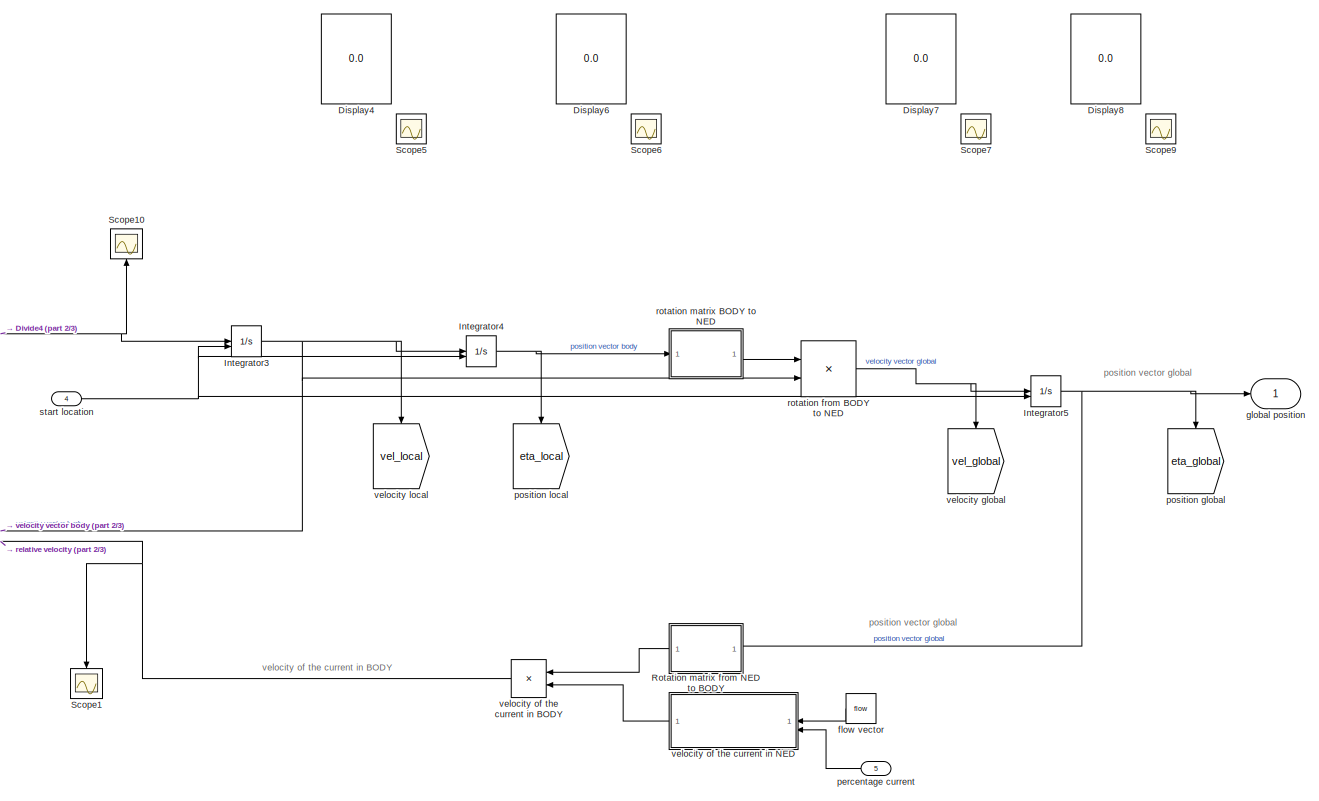
[diagram: vessel motion - part 1/3, central region]
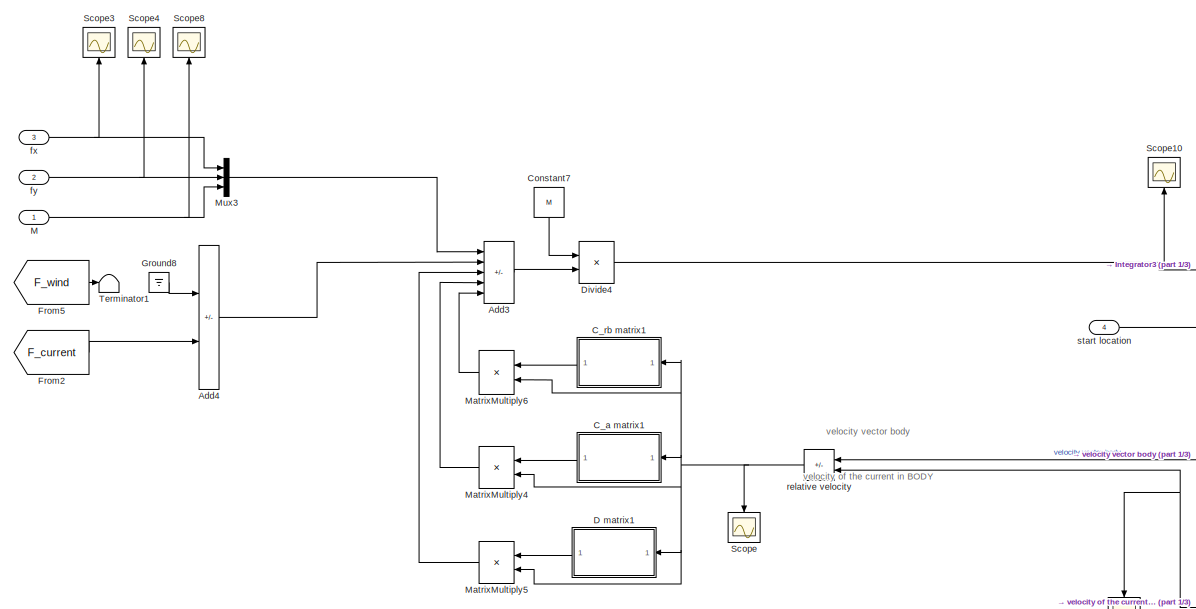
[diagram: vessel motion - part 2/3, top left region]
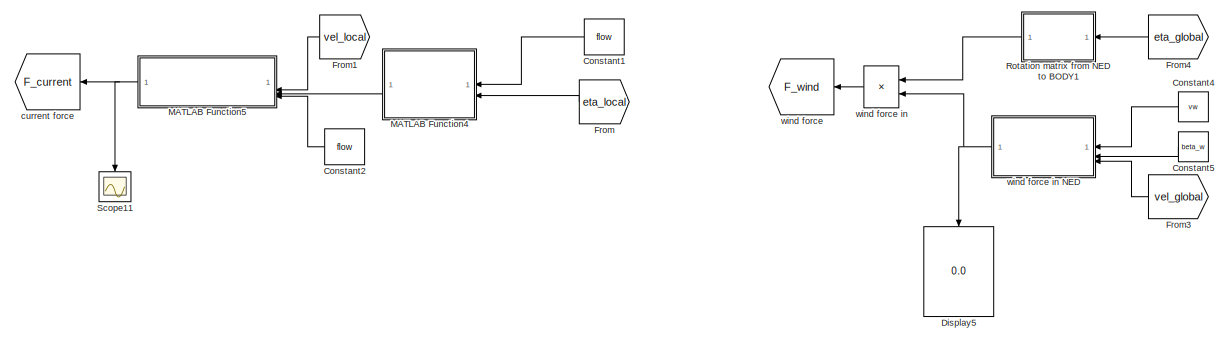
[diagram: vessel motion - part 3/3, bottom right region]
BLOCK [SubSystem] vessel motion
  NameLocation = left
BLOCK [Sum] vessel motion/Add3
  IconShape = rectangular
  Inputs = ++---
BLOCK [Sum] vessel motion/Add4
  IconShape = rectangular
  Inputs = +-
BLOCK [SubSystem] vessel motion/C_a matrix1
  ErrorFcn = Stateflow.Translate.translate
  NameLocation = top
  PermitHierarchicalResolution = ExplicitOnly
  SFBlockType = MATLAB Function
  TreatAsAtomicUnit = on
BLOCK [Demux] vessel motion/C_a matrix1/ Demux 
  Outputs = 1
BLOCK [S-Function] vessel motion/C_a matrix1/ SFunction 
  EnableBusSupport = on
  FunctionName = sf_sfun
  PortCounts = [1 2]
  SFcnIsStateOwnerBlock = off
  SFunctionDeploymentMode = off
  Tag = Stateflow S-Function 14
BLOCK [Terminator] vessel motion/C_a matrix1/ Terminator 
BLOCK [Outport] vessel motion/C_a matrix1/C_a
BLOCK [Inport] vessel motion/C_a matrix1/rel_vel
BLOCK [SubSystem] vessel motion/C_rb matrix1
  ErrorFcn = Stateflow.Translate.translate
  NameLocation = top
  PermitHierarchicalResolution = ExplicitOnly
  SFBlockType = MATLAB Function
  TreatAsAtomicUnit = on
BLOCK [Demux] vessel motion/C_rb matrix1/ Demux 
  Outputs = 1
BLOCK [S-Function] vessel motion/C_rb matrix1/ SFunction 
  EnableBusSupport = on
  FunctionName = sf_sfun
  PortCounts = [1 2]
  SFcnIsStateOwnerBlock = off
  SFunctionDeploymentMode = off
  Tag = Stateflow S-Function 15
BLOCK [Terminator] vessel motion/C_rb matrix1/ Terminator 
BLOCK [Outport] vessel motion/C_rb matrix1/C_rb
BLOCK [Inport] vessel motion/C_rb matrix1/rel_vel
BLOCK [Constant] vessel motion/Constant1
  NameLocation = top
  Value = flow
BLOCK [Constant] vessel motion/Constant2
  NameLocation = top
  Value = flow
BLOCK [Constant] vessel motion/Constant4
  NameLocation = top
  Value = vw
BLOCK [Constant] vessel motion/Constant5
  NameLocation = top
  Value = beta_w
BLOCK [Constant] vessel motion/Constant7
  NameLocation = left
  Value = M
BLOCK [SubSystem] vessel motion/D matrix1
  ErrorFcn = Stateflow.Translate.translate
  NameLocation = top
  PermitHierarchicalResolution = ExplicitOnly
  SFBlockType = MATLAB Function
  TreatAsAtomicUnit = on
BLOCK [Demux] vessel motion/D matrix1/ Demux 
  Outputs = 1
BLOCK [S-Function] vessel motion/D matrix1/ SFunction 
  EnableBusSupport = on
  FunctionName = sf_sfun
  PortCounts = [1 2]
  SFcnIsStateOwnerBlock = off
  SFunctionDeploymentMode = off
  Tag = Stateflow S-Function 16
BLOCK [Terminator] vessel motion/D matrix1/ Terminator 
BLOCK [Outport] vessel motion/D matrix1/D
BLOCK [Inport] vessel motion/D matrix1/rel_vel
BLOCK [Display] vessel motion/Display4
  Decimation = 1
  NameLocation = right
BLOCK [Display] vessel motion/Display5
  Decimation = 1
  NameLocation = left
BLOCK [Display] vessel motion/Display6
  Decimation = 1
  NameLocation = right
BLOCK [Display] vessel motion/Display7
  Decimation = 1
  NameLocation = right
BLOCK [Display] vessel motion/Display8
  Decimation = 1
  NameLocation = right
BLOCK [Product] vessel motion/Divide4
  Inputs = /*
  Multiplication = Matrix(*)
BLOCK [From] vessel motion/From
  GotoTag = eta_local
  NameLocation = top
BLOCK [From] vessel motion/From1
  GotoTag = vel_local
  NameLocation = top
BLOCK [From] vessel motion/From2
  GotoTag = F_current
BLOCK [From] vessel motion/From3
  GotoTag = vel_global
  NameLocation = top
BLOCK [From] vessel motion/From4
  GotoTag = eta_global
  NameLocation = top
BLOCK [From] vessel motion/From5
  GotoTag = F_wind
BLOCK [Ground] vessel motion/Ground8
BLOCK [Integrator] vessel motion/Integrator3
  InitialConditionSource = external
BLOCK [Integrator] vessel motion/Integrator4
  InitialConditionSource = external
BLOCK [Integrator] vessel motion/Integrator5
  InitialConditionSource = external
BLOCK [Inport] vessel motion/M
BLOCK [SubSystem] vessel motion/MATLAB Function4
  ErrorFcn = Stateflow.Translate.translate
  NameLocation = top
  PermitHierarchicalResolution = ExplicitOnly
  SFBlockType = MATLAB Function
  TreatAsAtomicUnit = on
BLOCK [Demux] vessel motion/MATLAB Function4/ Demux 
  Outputs = 1
BLOCK [S-Function] vessel motion/MATLAB Function4/ SFunction 
  EnableBusSupport = on
  FunctionName = sf_sfun
  PortCounts = [2 2]
  SFcnIsStateOwnerBlock = off
  SFunctionDeploymentMode = off
  Tag = Stateflow S-Function 20
BLOCK [Terminator] vessel motion/MATLAB Function4/ Terminator 
BLOCK [Inport] vessel motion/MATLAB Function4/eta
  Port = 2
BLOCK [Inport] vessel motion/MATLAB Function4/flow_B
BLOCK [Outport] vessel motion/MATLAB Function4/gamma
BLOCK [SubSystem] vessel motion/MATLAB Function5
  ErrorFcn = Stateflow.Translate.translate
  NameLocation = top
  PermitHierarchicalResolution = ExplicitOnly
  SFBlockType = MATLAB Function
  TreatAsAtomicUnit = on
BLOCK [Demux] vessel motion/MATLAB Function5/ Demux 
  Outputs = 1
BLOCK [S-Function] vessel motion/MATLAB Function5/ SFunction 
  EnableBusSupport = on
  FunctionName = sf_sfun
  PortCounts = [4 2]
  SFcnIsStateOwnerBlock = off
  SFunctionDeploymentMode = off
  Tag = Stateflow S-Function 21
BLOCK [Terminator] vessel motion/MATLAB Function5/ Terminator 
BLOCK [Outport] vessel motion/MATLAB Function5/F
BLOCK [Inport] vessel motion/MATLAB Function5/V_body
  Port = 2
BLOCK [Inport] vessel motion/MATLAB Function5/flow_current
  Port = 4
BLOCK [Inport] vessel motion/MATLAB Function5/gamma
  Port = 3
BLOCK [Inport] vessel motion/MATLAB Function5/percentage
BLOCK [Product] vessel motion/MatrixMultiply4
  Multiplication = Matrix(*)
  NameLocation = top
BLOCK [Product] vessel motion/MatrixMultiply5
  Multiplication = Matrix(*)
  NameLocation = top
BLOCK [Product] vessel motion/MatrixMultiply6
  Multiplication = Matrix(*)
  NameLocation = top
BLOCK [Mux] vessel motion/Mux3
  DisplayOption = bar
  Inputs = 3
BLOCK [SubSystem] vessel motion/Rotation matrix from NED to BODY
  ErrorFcn = Stateflow.Translate.translate
  NameLocation = top
  PermitHierarchicalResolution = ExplicitOnly
  SFBlockType = MATLAB Function
  TreatAsAtomicUnit = on
BLOCK [Demux] vessel motion/Rotation matrix from NED to BODY/ Demux 
  Outputs = 1
BLOCK [S-Function] vessel motion/Rotation matrix from NED to BODY/ SFunction 
  EnableBusSupport = on
  FunctionName = sf_sfun
  PortCounts = [1 2]
  SFcnIsStateOwnerBlock = off
  SFunctionDeploymentMode = off
  Tag = Stateflow S-Function 18
BLOCK [Terminator] vessel motion/Rotation matrix from NED to BODY/ Terminator 
BLOCK [Outport] vessel motion/Rotation matrix from NED to BODY/R
BLOCK [Inport] vessel motion/Rotation matrix from NED to BODY/eta
BLOCK [SubSystem] vessel motion/Rotation matrix from NED to BODY1
  ErrorFcn = Stateflow.Translate.translate
  NameLocation = top
  PermitHierarchicalResolution = ExplicitOnly
  SFBlockType = MATLAB Function
  TreatAsAtomicUnit = on
BLOCK [Demux] vessel motion/Rotation matrix from NED to BODY1/ Demux 
  Outputs = 1
BLOCK [S-Function] vessel motion/Rotation matrix from NED to BODY1/ SFunction 
  EnableBusSupport = on
  FunctionName = sf_sfun
  PortCounts = [1 2]
  SFcnIsStateOwnerBlock = off
  SFunctionDeploymentMode = off
  Tag = Stateflow S-Function 25
BLOCK [Terminator] vessel motion/Rotation matrix from NED to BODY1/ Terminator 
BLOCK [Outport] vessel motion/Rotation matrix from NED to BODY1/R
BLOCK [Inport] vessel motion/Rotation matrix from NED to BODY1/eta
BLOCK [Scope] vessel motion/Scope
  Floating = off
  NameLocation = left
  NumInputPorts = 1
  ScopeSpecificationString = Simulink.scopes.TimeScopeBlockCfg('CurrentConfiguration', extmgr.ConfigurationSet(extmgr.Configuration('Core','General UI',true),extmgr.Configuration('Core','Source UI',true),extmgr.Configuration('Sources','WiredSimulink',true,'DataLoggingVariableName','ScopeData1'),extmgr.Configuration('Visuals','Time Domain',true,'SerializedDisplays',{struct('MinYLimReal','-0.02892','MaxYLimReal','0.2243','YLabe...<+1473ch>
BLOCK [Scope] vessel motion/Scope1
  Floating = off
  NameLocation = left
  NumInputPorts = 1
  ScopeSpecificationString = Simulink.scopes.TimeScopeBlockCfg('CurrentConfiguration', extmgr.ConfigurationSet(extmgr.Configuration('Core','General UI',true),extmgr.Configuration('Core','Source UI',true),extmgr.Configuration('Sources','WiredSimulink',true,'DataLoggingVariableName','ScopeData1'),extmgr.Configuration('Visuals','Time Domain',true,'SerializedDisplays',{struct('MinYLimReal','-0.13125','MaxYLimReal','0.13125','YLab...<+1519ch>
BLOCK [Scope] vessel motion/Scope10
  Floating = off
  NameLocation = right
  NumInputPorts = 1
  ScopeSpecificationString = Simulink.scopes.TimeScopeBlockCfg('CurrentConfiguration', extmgr.ConfigurationSet(extmgr.Configuration('Core','General UI',true),extmgr.Configuration('Core','Source UI',true),extmgr.Configuration('Sources','WiredSimulink',true,'DataLoggingVariableName','ScopeData4'),extmgr.Configuration('Visuals','Time Domain',true,'SerializedDisplays',{struct('MinYLimReal','-0.09067','MaxYLimReal','0.12723','YLab...<+1447ch>
BLOCK [Scope] vessel motion/Scope11
  Floating = off
  NameLocation = left
  NumInputPorts = 1
  ScopeSpecificationString = Simulink.scopes.TimeScopeBlockCfg('CurrentConfiguration', extmgr.ConfigurationSet(extmgr.Configuration('Core','General UI',true),extmgr.Configuration('Core','Source UI',true),extmgr.Configuration('Sources','WiredSimulink',true,'DataLoggingVariableName','ScopeData12'),extmgr.Configuration('Visuals','Time Domain',true,'SerializedDisplays',{struct('MinYLimReal','-54789.70843','MaxYLimReal','6087.9902...<+1464ch>
BLOCK [Scope] vessel motion/Scope3
  Floating = off
  NameLocation = right
  NumInputPorts = 1
  ScopeSpecificationString = Simulink.scopes.TimeScopeBlockCfg('CurrentConfiguration', extmgr.ConfigurationSet(extmgr.Configuration('Core','General UI',true),extmgr.Configuration('Core','Source UI',true),extmgr.Configuration('Sources','WiredSimulink',true,'DataLoggingVariableName','ScopeData1'),extmgr.Configuration('Visuals','Time Domain',true,'SerializedDisplays',{struct('MinYLimReal','-2.19259','MaxYLimReal','2.25487','YLab...<+1416ch>
BLOCK [Scope] vessel motion/Scope4
  Floating = off
  NameLocation = right
  NumInputPorts = 1
  ScopeSpecificationString = Simulink.scopes.TimeScopeBlockCfg('CurrentConfiguration', extmgr.ConfigurationSet(extmgr.Configuration('Core','General UI',true),extmgr.Configuration('Core','Source UI',true),extmgr.Configuration('Sources','WiredSimulink',true,'DataLoggingVariableName','ScopeData2'),extmgr.Configuration('Visuals','Time Domain',true,'SerializedDisplays',{struct('MinYLimReal','-0.38407','MaxYLimReal','0.3029','YLabe...<+1414ch>
BLOCK [Scope] vessel motion/Scope5
  Floating = off
  NameLocation = right
  NumInputPorts = 1
  ScopeSpecificationString = Simulink.scopes.TimeScopeBlockCfg('CurrentConfiguration', extmgr.ConfigurationSet(extmgr.Configuration('Core','General UI',true),extmgr.Configuration('Core','Source UI',true),extmgr.Configuration('Sources','WiredSimulink',true,'DataLoggingVariableName','ScopeData1'),extmgr.Configuration('Visuals','Time Domain',true,'SerializedDisplays',{struct('MinYLimReal','-11073769627594406116363182195317429596...<+1847ch>
BLOCK [Scope] vessel motion/Scope6
  Floating = off
  NameLocation = right
  NumInputPorts = 1
  ScopeSpecificationString = Simulink.scopes.TimeScopeBlockCfg('CurrentConfiguration', extmgr.ConfigurationSet(extmgr.Configuration('Core','General UI',true),extmgr.Configuration('Core','Source UI',true),extmgr.Configuration('Sources','WiredSimulink',true,'DataLoggingVariableName','ScopeData2'),extmgr.Configuration('Visuals','Time Domain',true,'SerializedDisplays',{struct('MinYLimReal','-176.13915','MaxYLimReal','1584.8942','...<+1474ch>
BLOCK [Scope] vessel motion/Scope7
  Floating = off
  NameLocation = right
  NumInputPorts = 1
  ScopeSpecificationString = Simulink.scopes.TimeScopeBlockCfg('CurrentConfiguration', extmgr.ConfigurationSet(extmgr.Configuration('Core','General UI',true),extmgr.Configuration('Core','Source UI',true),extmgr.Configuration('Sources','WiredSimulink',true,'DataLoggingVariableName','ScopeData3'),extmgr.Configuration('Visuals','Time Domain',true,'SerializedDisplays',{struct('MinYLimReal','-11073769627594406116363182195317429596...<+1830ch>
BLOCK [Scope] vessel motion/Scope8
  Floating = off
  NameLocation = right
  NumInputPorts = 1
  ScopeSpecificationString = Simulink.scopes.TimeScopeBlockCfg('CurrentConfiguration', extmgr.ConfigurationSet(extmgr.Configuration('Core','General UI',true),extmgr.Configuration('Core','Source UI',true),extmgr.Configuration('Sources','WiredSimulink',true,'DataLoggingVariableName','ScopeData3'),extmgr.Configuration('Visuals','Time Domain',true,'SerializedDisplays',{struct('MinYLimReal','-0.02998','MaxYLimReal','0.10001','YLab...<+1415ch>
BLOCK [Scope] vessel motion/Scope9
  Floating = off
  NameLocation = right
  NumInputPorts = 1
  ScopeSpecificationString = Simulink.scopes.TimeScopeBlockCfg('CurrentConfiguration', extmgr.ConfigurationSet(extmgr.Configuration('Core','General UI',true),extmgr.Configuration('Core','Source UI',true),extmgr.Configuration('Sources','WiredSimulink',true,'DataLoggingVariableName','ScopeData5'),extmgr.Configuration('Visuals','Time Domain',true,'SerializedDisplays',{struct('MinYLimReal','-0.13193','MaxYLimReal','1.12869','YLab...<+1641ch>
BLOCK [Terminator] vessel motion/Terminator1
BLOCK [Goto] vessel motion/current force
  GotoTag = F_current
  NameLocation = top
BLOCK [Constant] vessel motion/flow vector
  NameLocation = top
  Value = flow
BLOCK [Inport] vessel motion/fx
  Port = 3
BLOCK [Inport] vessel motion/fy
  Port = 2
BLOCK [Outport] vessel motion/global position
BLOCK [Inport] vessel motion/percentage current
  Port = 5
BLOCK [Goto] vessel motion/position global
  GotoTag = eta_global
  NameLocation = left
BLOCK [Goto] vessel motion/position local
  GotoTag = eta_local
  NameLocation = left
BLOCK [Sum] vessel motion/relative velocity
  IconShape = rectangular
  Inputs = +-
  NameLocation = top
BLOCK [Product] vessel motion/rotation from BODY to NED
  Multiplication = Matrix(*)
BLOCK [SubSystem] vessel motion/rotation matrix BODY to NED
  ErrorFcn = Stateflow.Translate.translate
  NameLocation = top
  PermitHierarchicalResolution = ExplicitOnly
  SFBlockType = MATLAB Function
  TreatAsAtomicUnit = on
BLOCK [Demux] vessel motion/rotation matrix BODY to NED/ Demux 
  Outputs = 1
BLOCK [S-Function] vessel motion/rotation matrix BODY to NED/ SFunction 
  EnableBusSupport = on
  FunctionName = sf_sfun
  PortCounts = [1 2]
  SFcnIsStateOwnerBlock = off
  SFunctionDeploymentMode = off
  Tag = Stateflow S-Function 17
BLOCK [Terminator] vessel motion/rotation matrix BODY to NED/ Terminator 
BLOCK [Outport] vessel motion/rotation matrix BODY to NED/R
BLOCK [Inport] vessel motion/rotation matrix BODY to NED/eta
BLOCK [Inport] vessel motion/start location
  NameLocation = top
  Port = 4
BLOCK [Goto] vessel motion/velocity global
  GotoTag = vel_global
  NameLocation = left
BLOCK [Goto] vessel motion/velocity local
  GotoTag = vel_local
  NameLocation = left
BLOCK [Product] vessel motion/velocity of the current in BODY
  Inputs = **
  Multiplication = Matrix(*)
  NameLocation = top
BLOCK [SubSystem] vessel motion/velocity of the current in NED
  ErrorFcn = Stateflow.Translate.translate
  PermitHierarchicalResolution = ExplicitOnly
  SFBlockType = MATLAB Function
  TreatAsAtomicUnit = on
BLOCK [Demux] vessel motion/velocity of the current in NED/ Demux 
  Outputs = 1
BLOCK [S-Function] vessel motion/velocity of the current in NED/ SFunction 
  EnableBusSupport = on
  FunctionName = sf_sfun
  PortCounts = [2 2]
  SFcnIsStateOwnerBlock = off
  SFunctionDeploymentMode = off
  Tag = Stateflow S-Function 22
BLOCK [Terminator] vessel motion/velocity of the current in NED/ Terminator 
BLOCK [Inport] vessel motion/velocity of the current in NED/percentage
  Port = 2
BLOCK [Inport] vessel motion/velocity of the current in NED/u
BLOCK [Outport] vessel motion/velocity of the current in NED/vcned
BLOCK [Goto] vessel motion/wind force
  GotoTag = F_wind
  NameLocation = top
BLOCK [Product] vessel motion/wind force in 
  Inputs = **
  Multiplication = Matrix(*)
  NameLocation = top
BLOCK [SubSystem] vessel motion/wind force in NED
  ErrorFcn = Stateflow.Translate.translate
  NameLocation = top
  PermitHierarchicalResolution = ExplicitOnly
  SFBlockType = MATLAB Function
  TreatAsAtomicUnit = on
BLOCK [Demux] vessel motion/wind force in NED/ Demux 
  Outputs = 1
BLOCK [S-Function] vessel motion/wind force in NED/ SFunction 
  EnableBusSupport = on
  FunctionName = sf_sfun
  PortCounts = [3 2]
  SFcnIsStateOwnerBlock = off
  SFunctionDeploymentMode = off
  Tag = Stateflow S-Function 23
BLOCK [Terminator] vessel motion/wind force in NED/ Terminator 
BLOCK [Inport] vessel motion/wind force in NED/Vw
BLOCK [Inport] vessel motion/wind force in NED/b
  Port = 2
BLOCK [Outport] vessel motion/wind force in NED/tau_wind
BLOCK [Inport] vessel motion/wind force in NED/u_vec
  Port = 3
ANNOTATION (root): F_requested
ANNOTATION vessel motion: position vector global
ANNOTATION vessel motion: velocity of the current in BODY
ANNOTATION vessel motion: velocity vector body
LINE  :1 -> Demux1:1
LINE Demux1:1 -> requested forces to requested thrusts:1
LINE Demux1:2 -> requested forces to requested thrusts:2
LINE Demux1:3 -> requested forces to requested thrusts:3
LINE Gain1:1 -> Manual Switch1:1
LINE Gain2:1 -> Manual Switch2:1
LINE Gain:1 -> Manual Switch:1
LINE Ground1:1 -> propulsion port side:1
LINE Ground:1 -> propulsion star board:1
LINE Manual Switch1:1 -> vessel motion:2
LINE Manual Switch2:1 -> vessel motion:1
LINE Manual Switch3:1 -> error (NED to BODY):1
LINE Manual Switch:1 -> vessel motion:3
LINE debug manually set moment:1 -> Manual Switch2:2
LINE debug manually set x-force:1 -> Manual Switch:2
LINE debug manually set y-force:1 -> Manual Switch1:2
LINE debug:1 -> Manual Switch3:2
NET error (NED to BODY)/error global:1 -> error (NED to BODY)/Scope10:1, error (NED to BODY)/error local:2
NET error (NED to BODY)/error local:1 -> error (NED to BODY)/Scope1:1, error (NED to BODY)/error signal:1
NET error (NED to BODY)/received global position :1 -> error (NED to BODY)/error global:1, error (NED to BODY)/rotation matrix global to local:1
LINE error (NED to BODY)/requested global position:1 -> error (NED to BODY)/error global:2
NET error (NED to BODY)/rotation matrix global to local:1 -> error (NED to BODY)/Display:1, error (NED to BODY)/error local:1
LINE error (NED to BODY):1 -> error to requested force:1
LINE error to requested force/Demux1:1 -> error to requested force/PID Controller:1
LINE error to requested force/Demux1:2 -> error to requested force/PID Controller1:1
LINE error to requested force/Demux1:3 -> error to requested force/PID Controller2:1
LINE error to requested force/Mux2:1 -> error to requested force/F_req:1
LINE error to requested force/PID Controller1:1 -> error to requested force/Saturation1:1
LINE error to requested force/PID Controller2:1 -> error to requested force/Saturation2:1
LINE error to requested force/PID Controller:1 -> error to requested force/Saturation:1
LINE error to requested force/Saturation1:1 -> error to requested force/Mux2:2
LINE error to requested force/Saturation2:1 -> error to requested force/Mux2:3
LINE error to requested force/Saturation:1 -> error to requested force/Mux2:1
LINE error to requested force/error signal:1 -> error to requested force/Demux1:1
LINE error to requested force:1 -> F_requested:1
LINE initial boundary condition:1 -> vessel motion:4
LINE percentage of max current speed:1 -> vessel motion:5
LINE propulsion chain/Bow_req:1 -> propulsion chain/propulsion bow:1
LINE propulsion chain/Gain10:1 -> propulsion chain/Gain12:1
LINE propulsion chain/Gain11:1 -> propulsion chain/Gain6:1
LINE propulsion chain/Gain12:1 -> propulsion chain/Subsystem1:1
LINE propulsion chain/Gain13:1 -> propulsion chain/Gain14:1
NET propulsion chain/Gain14:1 -> propulsion chain/MATLAB Function2:1, propulsion chain/Scope15:1
LINE propulsion chain/Gain3:1 -> propulsion chain/Gain4:1
LINE propulsion chain/Gain4:1 -> propulsion chain/Gain5:1
NET propulsion chain/Gain5:1 -> propulsion chain/Scope16:1, propulsion chain/Subsystem3:1
LINE propulsion chain/Gain6:1 -> propulsion chain/Gain8:1
LINE propulsion chain/Gain7:1 -> propulsion chain/Gain13:1
NET propulsion chain/Gain8:1 -> propulsion chain/MATLAB Function8:1, propulsion chain/Scope13:1
LINE propulsion chain/Gain9:1 -> propulsion chain/Gain10:1
NET propulsion chain/MATLAB Function1:1 -> propulsion chain/Gain9:1, propulsion chain/Scope14:1
LINE propulsion chain/MATLAB Function2:1 -> propulsion chain/Thrust_sb1:1
NET propulsion chain/MATLAB Function6:1 -> propulsion chain/Gain3:1, propulsion chain/Scope12:1
LINE propulsion chain/MATLAB Function8:1 -> propulsion chain/Thrust_sb:1
LINE propulsion chain/Saturation1:1 -> propulsion chain/MATLAB Function1:1
LINE propulsion chain/Saturation:1 -> propulsion chain/MATLAB Function6:1
LINE propulsion chain/Subsystem1/From1:1 -> propulsion chain/Subsystem1/Subsystem1:2
LINE propulsion chain/Subsystem1/From:1 -> propulsion chain/Subsystem1/Subsystem2:2
LINE propulsion chain/Subsystem1/Gain:1 -> propulsion chain/Subsystem1/Subsystem:2
NET propulsion chain/Subsystem1/Omegaref:1 -> propulsion chain/Subsystem1/Subsystem1:1, propulsion chain/Subsystem1/omegachecker:1
LINE propulsion chain/Subsystem1/Square:1 -> propulsion chain/Subsystem1/Gain:1
LINE propulsion chain/Subsystem1/Subsystem/Add1:1 -> propulsion chain/Subsystem1/Subsystem/Gain4:1
LINE propulsion chain/Subsystem1/Subsystem/Add:1 -> propulsion chain/Subsystem1/Subsystem/Gain:1
LINE propulsion chain/Subsystem1/Subsystem/E:1 -> propulsion chain/Subsystem1/Subsystem/Add:2
LINE propulsion chain/Subsystem1/Subsystem/Gain1:1 -> propulsion chain/Subsystem1/Subsystem/Add:1
LINE propulsion chain/Subsystem1/Subsystem/Gain2:1 -> propulsion chain/Subsystem1/Subsystem/Add:3
NET propulsion chain/Subsystem1/Subsystem/Gain3:1 -> propulsion chain/Subsystem1/Subsystem/Add1:1, propulsion chain/Subsystem1/Subsystem/Tem:1
LINE propulsion chain/Subsystem1/Subsystem/Gain4:1 -> propulsion chain/Subsystem1/Subsystem/Integrator1:1
NET propulsion chain/Subsystem1/Subsystem/Gain5:1 -> propulsion chain/Subsystem1/Subsystem/Add1:3, propulsion chain/Subsystem1/Subsystem/Tloss:1
LINE propulsion chain/Subsystem1/Subsystem/Gain:1 -> propulsion chain/Subsystem1/Subsystem/Integrator:1
NET propulsion chain/Subsystem1/Subsystem/Integrator1:1 -> propulsion chain/Subsystem1/Subsystem/Gain2:1, propulsion chain/Subsystem1/Subsystem/Gain5:1, propulsion chain/Subsystem1/Subsystem/Integrator2:1, propulsion chain/Subsystem1/Subsystem/wm:1
LINE propulsion chain/Subsystem1/Subsystem/Integrator2:1 -> propulsion chain/Subsystem1/Subsystem/Theta:1
NET propulsion chain/Subsystem1/Subsystem/Integrator:1 -> propulsion chain/Subsystem1/Subsystem/Gain1:1, propulsion chain/Subsystem1/Subsystem/Gain3:1, propulsion chain/Subsystem1/Subsystem/ia:1
LINE propulsion chain/Subsystem1/Subsystem/T:1 -> propulsion chain/Subsystem1/Subsystem/Add1:2
NET propulsion chain/Subsystem1/Subsystem1/Add:1 -> propulsion chain/Subsystem1/Subsystem1/Gain:1, propulsion chain/Subsystem1/Subsystem1/error:1
LINE propulsion chain/Subsystem1/Subsystem1/Gain:1 -> propulsion chain/Subsystem1/Subsystem1/PID Controller:1
LINE propulsion chain/Subsystem1/Subsystem1/Omega:1 -> propulsion chain/Subsystem1/Subsystem1/Add:2
LINE propulsion chain/Subsystem1/Subsystem1/Omegaref:1 -> propulsion chain/Subsystem1/Subsystem1/Add:1
LINE propulsion chain/Subsystem1/Subsystem1/PID Controller:1 -> propulsion chain/Subsystem1/Subsystem1/Saturation:1
LINE propulsion chain/Subsystem1/Subsystem1/Saturation:1 -> propulsion chain/Subsystem1/Subsystem1/Iaref:1
LINE propulsion chain/Subsystem1/Subsystem1:1 -> propulsion chain/Subsystem1/Subsystem2:1
LINE propulsion chain/Subsystem1/Subsystem1:2 -> propulsion chain/Subsystem1/error omega:1
NET propulsion chain/Subsystem1/Subsystem2/Add:1 -> propulsion chain/Subsystem1/Subsystem2/Transfer Fcn:1, propulsion chain/Subsystem1/Subsystem2/error Ia:1
LINE propulsion chain/Subsystem1/Subsystem2/Ia:1 -> propulsion chain/Subsystem1/Subsystem2/Add:2
LINE propulsion chain/Subsystem1/Subsystem2/Iaref:1 -> propulsion chain/Subsystem1/Subsystem2/Add:1
LINE propulsion chain/Subsystem1/Subsystem2/Transfer Fcn:1 -> propulsion chain/Subsystem1/Subsystem2/ea:1
NET propulsion chain/Subsystem1/Subsystem2:1 -> propulsion chain/Subsystem1/Scope2:1, propulsion chain/Subsystem1/Subsystem:1
LINE propulsion chain/Subsystem1/Subsystem2:2 -> propulsion chain/Subsystem1/error current:1
NET propulsion chain/Subsystem1/Subsystem:1 -> propulsion chain/Subsystem1/ia monitor:1, propulsion chain/Subsystem1/ia:1
LINE propulsion chain/Subsystem1/Subsystem:2 -> propulsion chain/Subsystem1/Tloss:1
LINE propulsion chain/Subsystem1/Subsystem:3 -> propulsion chain/Subsystem1/Theta:1
LINE propulsion chain/Subsystem1/Subsystem:4 -> propulsion chain/Subsystem1/Tem:1
NET propulsion chain/Subsystem1/Subsystem:5 -> propulsion chain/Subsystem1/Square:1, propulsion chain/Subsystem1/Tem1:1, propulsion chain/Subsystem1/emoga motor:1, propulsion chain/Subsystem1/omega motor:1
LINE propulsion chain/Subsystem1:1 -> propulsion chain/Gain7:1
LINE propulsion chain/Subsystem3/From1:1 -> propulsion chain/Subsystem3/Subsystem1:2
LINE propulsion chain/Subsystem3/From:1 -> propulsion chain/Subsystem3/Subsystem2:2
LINE propulsion chain/Subsystem3/Gain:1 -> propulsion chain/Subsystem3/Subsystem:2
NET propulsion chain/Subsystem3/Omegaref:1 -> propulsion chain/Subsystem3/Subsystem1:1, propulsion chain/Subsystem3/omegachecker:1
LINE propulsion chain/Subsystem3/Square:1 -> propulsion chain/Subsystem3/Gain:1
LINE propulsion chain/Subsystem3/Subsystem/Add1:1 -> propulsion chain/Subsystem3/Subsystem/Gain4:1
LINE propulsion chain/Subsystem3/Subsystem/Add:1 -> propulsion chain/Subsystem3/Subsystem/Gain:1
LINE propulsion chain/Subsystem3/Subsystem/E:1 -> propulsion chain/Subsystem3/Subsystem/Add:2
LINE propulsion chain/Subsystem3/Subsystem/Gain1:1 -> propulsion chain/Subsystem3/Subsystem/Add:1
LINE propulsion chain/Subsystem3/Subsystem/Gain2:1 -> propulsion chain/Subsystem3/Subsystem/Add:3
NET propulsion chain/Subsystem3/Subsystem/Gain3:1 -> propulsion chain/Subsystem3/Subsystem/Add1:1, propulsion chain/Subsystem3/Subsystem/Tem:1
LINE propulsion chain/Subsystem3/Subsystem/Gain4:1 -> propulsion chain/Subsystem3/Subsystem/Integrator1:1
NET propulsion chain/Subsystem3/Subsystem/Gain5:1 -> propulsion chain/Subsystem3/Subsystem/Add1:3, propulsion chain/Subsystem3/Subsystem/Tloss:1
LINE propulsion chain/Subsystem3/Subsystem/Gain:1 -> propulsion chain/Subsystem3/Subsystem/Integrator:1
NET propulsion chain/Subsystem3/Subsystem/Integrator1:1 -> propulsion chain/Subsystem3/Subsystem/Gain2:1, propulsion chain/Subsystem3/Subsystem/Gain5:1, propulsion chain/Subsystem3/Subsystem/Integrator2:1, propulsion chain/Subsystem3/Subsystem/wm:1
LINE propulsion chain/Subsystem3/Subsystem/Integrator2:1 -> propulsion chain/Subsystem3/Subsystem/Theta:1
NET propulsion chain/Subsystem3/Subsystem/Integrator:1 -> propulsion chain/Subsystem3/Subsystem/Gain1:1, propulsion chain/Subsystem3/Subsystem/Gain3:1, propulsion chain/Subsystem3/Subsystem/ia:1
LINE propulsion chain/Subsystem3/Subsystem/T:1 -> propulsion chain/Subsystem3/Subsystem/Add1:2
NET propulsion chain/Subsystem3/Subsystem1/Add:1 -> propulsion chain/Subsystem3/Subsystem1/Gain:1, propulsion chain/Subsystem3/Subsystem1/error:1
LINE propulsion chain/Subsystem3/Subsystem1/Gain:1 -> propulsion chain/Subsystem3/Subsystem1/PID Controller:1
LINE propulsion chain/Subsystem3/Subsystem1/Omega:1 -> propulsion chain/Subsystem3/Subsystem1/Add:2
LINE propulsion chain/Subsystem3/Subsystem1/Omegaref:1 -> propulsion chain/Subsystem3/Subsystem1/Add:1
LINE propulsion chain/Subsystem3/Subsystem1/PID Controller:1 -> propulsion chain/Subsystem3/Subsystem1/Saturation:1
LINE propulsion chain/Subsystem3/Subsystem1/Saturation:1 -> propulsion chain/Subsystem3/Subsystem1/Iaref:1
LINE propulsion chain/Subsystem3/Subsystem1:1 -> propulsion chain/Subsystem3/Subsystem2:1
LINE propulsion chain/Subsystem3/Subsystem1:2 -> propulsion chain/Subsystem3/error omega:1
NET propulsion chain/Subsystem3/Subsystem2/Add:1 -> propulsion chain/Subsystem3/Subsystem2/Transfer Fcn:1, propulsion chain/Subsystem3/Subsystem2/error Ia:1
LINE propulsion chain/Subsystem3/Subsystem2/Ia:1 -> propulsion chain/Subsystem3/Subsystem2/Add:2
LINE propulsion chain/Subsystem3/Subsystem2/Iaref:1 -> propulsion chain/Subsystem3/Subsystem2/Add:1
LINE propulsion chain/Subsystem3/Subsystem2/Transfer Fcn:1 -> propulsion chain/Subsystem3/Subsystem2/ea:1
NET propulsion chain/Subsystem3/Subsystem2:1 -> propulsion chain/Subsystem3/Scope2:1, propulsion chain/Subsystem3/Subsystem:1
LINE propulsion chain/Subsystem3/Subsystem2:2 -> propulsion chain/Subsystem3/error current:1
NET propulsion chain/Subsystem3/Subsystem:1 -> propulsion chain/Subsystem3/ia monitor:1, propulsion chain/Subsystem3/ia:1
LINE propulsion chain/Subsystem3/Subsystem:2 -> propulsion chain/Subsystem3/Tloss:1
LINE propulsion chain/Subsystem3/Subsystem:3 -> propulsion chain/Subsystem3/Theta:1
LINE propulsion chain/Subsystem3/Subsystem:4 -> propulsion chain/Subsystem3/Tem:1
NET propulsion chain/Subsystem3/Subsystem:5 -> propulsion chain/Subsystem3/Square:1, propulsion chain/Subsystem3/Tem1:1, propulsion chain/Subsystem3/emoga motor:1, propulsion chain/Subsystem3/omega motor:1
NET propulsion chain/Subsystem3:1 -> propulsion chain/Gain11:1, propulsion chain/Scope17:1
LINE propulsion chain/T_ps_req:1 -> propulsion chain/Saturation1:1
LINE propulsion chain/T_sb_req:1 -> propulsion chain/Saturation:1
LINE propulsion chain/propulsion bow/Bow_req:1 -> propulsion chain/propulsion bow/Saturation:1
LINE propulsion chain/propulsion bow/Saturation:1 -> propulsion chain/propulsion bow/Thrust_bow:1
LINE propulsion chain/propulsion bow:1 -> propulsion chain/Thrust_bow:1
LINE propulsion chain:1 -> thrust ro forces:1
LINE propulsion chain:2 -> thrust ro forces:2
LINE propulsion chain:3 -> thrust ro forces:3
LINE propulsion port side/Gain10:1 -> propulsion port side/Gain7:1
LINE propulsion port side/Gain1:1 -> propulsion port side/Gain3:1
LINE propulsion port side/Gain3:1 -> propulsion port side/Gain5:1
LINE propulsion port side/Gain5:1 -> propulsion port side/Subsystem1:1
LINE propulsion port side/Gain7:1 -> propulsion port side/Gain9:1
LINE propulsion port side/Gain9:1 -> propulsion port side/MATLAB Function9:1
LINE propulsion port side/MATLAB Function7:1 -> propulsion port side/Gain1:1
LINE propulsion port side/MATLAB Function9:1 -> propulsion port side/Thrust_ps:1
LINE propulsion port side/Saturation:1 -> propulsion port side/MATLAB Function7:1
LINE propulsion port side/Subsystem1/From1:1 -> propulsion port side/Subsystem1/Subsystem1:2
LINE propulsion port side/Subsystem1/From:1 -> propulsion port side/Subsystem1/Subsystem2:2
LINE propulsion port side/Subsystem1/Gain:1 -> propulsion port side/Subsystem1/Subsystem:2
NET propulsion port side/Subsystem1/Omegaref:1 -> propulsion port side/Subsystem1/Subsystem1:1, propulsion port side/Subsystem1/omegachecker:1
LINE propulsion port side/Subsystem1/Square:1 -> propulsion port side/Subsystem1/Gain:1
LINE propulsion port side/Subsystem1/Subsystem/Add1:1 -> propulsion port side/Subsystem1/Subsystem/Gain4:1
LINE propulsion port side/Subsystem1/Subsystem/Add:1 -> propulsion port side/Subsystem1/Subsystem/Gain:1
LINE propulsion port side/Subsystem1/Subsystem/E:1 -> propulsion port side/Subsystem1/Subsystem/Add:2
LINE propulsion port side/Subsystem1/Subsystem/Gain1:1 -> propulsion port side/Subsystem1/Subsystem/Add:1
LINE propulsion port side/Subsystem1/Subsystem/Gain2:1 -> propulsion port side/Subsystem1/Subsystem/Add:3
NET propulsion port side/Subsystem1/Subsystem/Gain3:1 -> propulsion port side/Subsystem1/Subsystem/Add1:1, propulsion port side/Subsystem1/Subsystem/Tem:1
LINE propulsion port side/Subsystem1/Subsystem/Gain4:1 -> propulsion port side/Subsystem1/Subsystem/Integrator1:1
NET propulsion port side/Subsystem1/Subsystem/Gain5:1 -> propulsion port side/Subsystem1/Subsystem/Add1:3, propulsion port side/Subsystem1/Subsystem/Tloss:1
LINE propulsion port side/Subsystem1/Subsystem/Gain:1 -> propulsion port side/Subsystem1/Subsystem/Integrator:1
NET propulsion port side/Subsystem1/Subsystem/Integrator1:1 -> propulsion port side/Subsystem1/Subsystem/Gain2:1, propulsion port side/Subsystem1/Subsystem/Gain5:1, propulsion port side/Subsystem1/Subsystem/Integrator2:1, propulsion port side/Subsystem1/Subsystem/wm:1
LINE propulsion port side/Subsystem1/Subsystem/Integrator2:1 -> propulsion port side/Subsystem1/Subsystem/Theta:1
NET propulsion port side/Subsystem1/Subsystem/Integrator:1 -> propulsion port side/Subsystem1/Subsystem/Gain1:1, propulsion port side/Subsystem1/Subsystem/Gain3:1, propulsion port side/Subsystem1/Subsystem/ia:1
LINE propulsion port side/Subsystem1/Subsystem/T:1 -> propulsion port side/Subsystem1/Subsystem/Add1:2
NET propulsion port side/Subsystem1/Subsystem1/Add:1 -> propulsion port side/Subsystem1/Subsystem1/Gain:1, propulsion port side/Subsystem1/Subsystem1/error:1
LINE propulsion port side/Subsystem1/Subsystem1/Gain:1 -> propulsion port side/Subsystem1/Subsystem1/PID Controller:1
LINE propulsion port side/Subsystem1/Subsystem1/Omega:1 -> propulsion port side/Subsystem1/Subsystem1/Add:2
LINE propulsion port side/Subsystem1/Subsystem1/Omegaref:1 -> propulsion port side/Subsystem1/Subsystem1/Add:1
LINE propulsion port side/Subsystem1/Subsystem1/PID Controller:1 -> propulsion port side/Subsystem1/Subsystem1/Saturation:1
LINE propulsion port side/Subsystem1/Subsystem1/Saturation:1 -> propulsion port side/Subsystem1/Subsystem1/Iaref:1
LINE propulsion port side/Subsystem1/Subsystem1:1 -> propulsion port side/Subsystem1/Subsystem2:1
LINE propulsion port side/Subsystem1/Subsystem1:2 -> propulsion port side/Subsystem1/error omega:1
NET propulsion port side/Subsystem1/Subsystem2/Add:1 -> propulsion port side/Subsystem1/Subsystem2/Transfer Fcn:1, propulsion port side/Subsystem1/Subsystem2/error Ia:1
LINE propulsion port side/Subsystem1/Subsystem2/Ia:1 -> propulsion port side/Subsystem1/Subsystem2/Add:2
LINE propulsion port side/Subsystem1/Subsystem2/Iaref:1 -> propulsion port side/Subsystem1/Subsystem2/Add:1
LINE propulsion port side/Subsystem1/Subsystem2/Transfer Fcn:1 -> propulsion port side/Subsystem1/Subsystem2/ea:1
NET propulsion port side/Subsystem1/Subsystem2:1 -> propulsion port side/Subsystem1/Scope2:1, propulsion port side/Subsystem1/Subsystem:1
LINE propulsion port side/Subsystem1/Subsystem2:2 -> propulsion port side/Subsystem1/error current:1
NET propulsion port side/Subsystem1/Subsystem:1 -> propulsion port side/Subsystem1/ia monitor:1, propulsion port side/Subsystem1/ia:1
LINE propulsion port side/Subsystem1/Subsystem:2 -> propulsion port side/Subsystem1/Tloss:1
LINE propulsion port side/Subsystem1/Subsystem:3 -> propulsion port side/Subsystem1/Theta:1
LINE propulsion port side/Subsystem1/Subsystem:4 -> propulsion port side/Subsystem1/Tem:1
NET propulsion port side/Subsystem1/Subsystem:5 -> propulsion port side/Subsystem1/Square:1, propulsion port side/Subsystem1/Tem1:1, propulsion port side/Subsystem1/emoga motor:1, propulsion port side/Subsystem1/omega motor:1
LINE propulsion port side/Subsystem1:1 -> propulsion port side/Gain10:1
LINE propulsion port side/T_ps_req:1 -> propulsion port side/Saturation:1
LINE propulsion port side:1 -> Terminator1:1
LINE propulsion star board/Gain11:1 -> propulsion star board/Gain6:1
LINE propulsion star board/Gain2:1 -> propulsion star board/Gain4:1
LINE propulsion star board/Gain4:1 -> propulsion star board/Subsystem3:1
LINE propulsion star board/Gain6:1 -> propulsion star board/Gain8:1
NET propulsion star board/Gain8:1 -> propulsion star board/MATLAB Function8:1, propulsion star board/Scope8:1
LINE propulsion star board/Gain:1 -> propulsion star board/Gain2:1
NET propulsion star board/MATLAB Function6:1 -> propulsion star board/Gain:1, propulsion star board/Scope1:1
LINE propulsion star board/MATLAB Function8:1 -> propulsion star board/Thrust_sb:1
LINE propulsion star board/Saturation:1 -> propulsion star board/MATLAB Function6:1
LINE propulsion star board/Subsystem3/From1:1 -> propulsion star board/Subsystem3/Subsystem1:2
LINE propulsion star board/Subsystem3/From:1 -> propulsion star board/Subsystem3/Subsystem2:2
LINE propulsion star board/Subsystem3/Gain:1 -> propulsion star board/Subsystem3/Subsystem:2
NET propulsion star board/Subsystem3/Omegaref:1 -> propulsion star board/Subsystem3/Subsystem1:1, propulsion star board/Subsystem3/omegachecker:1
LINE propulsion star board/Subsystem3/Square:1 -> propulsion star board/Subsystem3/Gain:1
LINE propulsion star board/Subsystem3/Subsystem/Add1:1 -> propulsion star board/Subsystem3/Subsystem/Gain4:1
LINE propulsion star board/Subsystem3/Subsystem/Add:1 -> propulsion star board/Subsystem3/Subsystem/Gain:1
LINE propulsion star board/Subsystem3/Subsystem/E:1 -> propulsion star board/Subsystem3/Subsystem/Add:2
LINE propulsion star board/Subsystem3/Subsystem/Gain1:1 -> propulsion star board/Subsystem3/Subsystem/Add:1
LINE propulsion star board/Subsystem3/Subsystem/Gain2:1 -> propulsion star board/Subsystem3/Subsystem/Add:3
NET propulsion star board/Subsystem3/Subsystem/Gain3:1 -> propulsion star board/Subsystem3/Subsystem/Add1:1, propulsion star board/Subsystem3/Subsystem/Tem:1
LINE propulsion star board/Subsystem3/Subsystem/Gain4:1 -> propulsion star board/Subsystem3/Subsystem/Integrator1:1
NET propulsion star board/Subsystem3/Subsystem/Gain5:1 -> propulsion star board/Subsystem3/Subsystem/Add1:3, propulsion star board/Subsystem3/Subsystem/Tloss:1
LINE propulsion star board/Subsystem3/Subsystem/Gain:1 -> propulsion star board/Subsystem3/Subsystem/Integrator:1
NET propulsion star board/Subsystem3/Subsystem/Integrator1:1 -> propulsion star board/Subsystem3/Subsystem/Gain2:1, propulsion star board/Subsystem3/Subsystem/Gain5:1, propulsion star board/Subsystem3/Subsystem/Integrator2:1, propulsion star board/Subsystem3/Subsystem/wm:1
LINE propulsion star board/Subsystem3/Subsystem/Integrator2:1 -> propulsion star board/Subsystem3/Subsystem/Theta:1
NET propulsion star board/Subsystem3/Subsystem/Integrator:1 -> propulsion star board/Subsystem3/Subsystem/Gain1:1, propulsion star board/Subsystem3/Subsystem/Gain3:1, propulsion star board/Subsystem3/Subsystem/ia:1
LINE propulsion star board/Subsystem3/Subsystem/T:1 -> propulsion star board/Subsystem3/Subsystem/Add1:2
NET propulsion star board/Subsystem3/Subsystem1/Add:1 -> propulsion star board/Subsystem3/Subsystem1/Gain:1, propulsion star board/Subsystem3/Subsystem1/error:1
LINE propulsion star board/Subsystem3/Subsystem1/Gain:1 -> propulsion star board/Subsystem3/Subsystem1/PID Controller:1
LINE propulsion star board/Subsystem3/Subsystem1/Omega:1 -> propulsion star board/Subsystem3/Subsystem1/Add:2
LINE propulsion star board/Subsystem3/Subsystem1/Omegaref:1 -> propulsion star board/Subsystem3/Subsystem1/Add:1
LINE propulsion star board/Subsystem3/Subsystem1/PID Controller:1 -> propulsion star board/Subsystem3/Subsystem1/Saturation:1
LINE propulsion star board/Subsystem3/Subsystem1/Saturation:1 -> propulsion star board/Subsystem3/Subsystem1/Iaref:1
LINE propulsion star board/Subsystem3/Subsystem1:1 -> propulsion star board/Subsystem3/Subsystem2:1
LINE propulsion star board/Subsystem3/Subsystem1:2 -> propulsion star board/Subsystem3/error omega:1
NET propulsion star board/Subsystem3/Subsystem2/Add:1 -> propulsion star board/Subsystem3/Subsystem2/Transfer Fcn:1, propulsion star board/Subsystem3/Subsystem2/error Ia:1
LINE propulsion star board/Subsystem3/Subsystem2/Ia:1 -> propulsion star board/Subsystem3/Subsystem2/Add:2
LINE propulsion star board/Subsystem3/Subsystem2/Iaref:1 -> propulsion star board/Subsystem3/Subsystem2/Add:1
LINE propulsion star board/Subsystem3/Subsystem2/Transfer Fcn:1 -> propulsion star board/Subsystem3/Subsystem2/ea:1
NET propulsion star board/Subsystem3/Subsystem2:1 -> propulsion star board/Subsystem3/Scope2:1, propulsion star board/Subsystem3/Subsystem:1
LINE propulsion star board/Subsystem3/Subsystem2:2 -> propulsion star board/Subsystem3/error current:1
NET propulsion star board/Subsystem3/Subsystem:1 -> propulsion star board/Subsystem3/ia monitor:1, propulsion star board/Subsystem3/ia:1
LINE propulsion star board/Subsystem3/Subsystem:2 -> propulsion star board/Subsystem3/Tloss:1
LINE propulsion star board/Subsystem3/Subsystem:3 -> propulsion star board/Subsystem3/Theta:1
LINE propulsion star board/Subsystem3/Subsystem:4 -> propulsion star board/Subsystem3/Tem:1
NET propulsion star board/Subsystem3/Subsystem:5 -> propulsion star board/Subsystem3/Square:1, propulsion star board/Subsystem3/Tem1:1, propulsion star board/Subsystem3/emoga motor:1, propulsion star board/Subsystem3/omega motor:1
LINE propulsion star board/Subsystem3:1 -> propulsion star board/Gain11:1
LINE propulsion star board/T_sb_req:1 -> propulsion star board/Saturation:1
LINE propulsion star board:1 -> Terminator:1
LINE requested forces to requested thrusts/Constant1:1 -> requested forces to requested thrusts/Divide3:1
LINE requested forces to requested thrusts/Demux:1 -> requested forces to requested thrusts/T_sb_req:1
LINE requested forces to requested thrusts/Demux:2 -> requested forces to requested thrusts/T_ps_req:1
LINE requested forces to requested thrusts/Demux:3 -> requested forces to requested thrusts/Bow_req:1
LINE requested forces to requested thrusts/Divide3:1 -> requested forces to requested thrusts/Demux:1
LINE requested forces to requested thrusts/M_req:1 -> requested forces to requested thrusts/Mux:3
LINE requested forces to requested thrusts/Mux:1 -> requested forces to requested thrusts/Divide3:2
LINE requested forces to requested thrusts/fx_req:1 -> requested forces to requested thrusts/Mux:1
LINE requested forces to requested thrusts/fy_req:1 -> requested forces to requested thrusts/Mux:2
LINE requested forces to requested thrusts:1 -> propulsion chain:1
LINE requested forces to requested thrusts:2 -> propulsion chain:2
LINE requested forces to requested thrusts:3 -> propulsion chain:3
LINE requested global position:1 -> error (NED to BODY):2
LINE thrust ro forces/Constant6:1 -> thrust ro forces/Product:1
LINE thrust ro forces/Demux1:1 -> thrust ro forces/fx:1
LINE thrust ro forces/Demux1:2 -> thrust ro forces/fy:1
LINE thrust ro forces/Demux1:3 -> thrust ro forces/M:1
LINE thrust ro forces/Mux2:1 -> thrust ro forces/Product:2
LINE thrust ro forces/Product:1 -> thrust ro forces/Demux1:1
LINE thrust ro forces/Thrust_bow:1 -> thrust ro forces/Mux2:3
LINE thrust ro forces/Thrust_sb:1 -> thrust ro forces/Mux2:1
LINE thrust ro forces/Thust_ps:1 -> thrust ro forces/Mux2:2
LINE thrust ro forces:1 -> Gain2:1
LINE thrust ro forces:2 -> Gain1:1
LINE thrust ro forces:3 -> Gain:1
LINE vessel motion/Add3:1 -> vessel motion/Divide4:2
LINE vessel motion/Add4:1 -> vessel motion/Add3:2
LINE vessel motion/C_a matrix1:1 -> vessel motion/MatrixMultiply4:1
LINE vessel motion/C_rb matrix1:1 -> vessel motion/MatrixMultiply6:1
LINE vessel motion/Constant1:1 -> vessel motion/MATLAB Function4:1
LINE vessel motion/Constant2:1 -> vessel motion/MATLAB Function5:4
LINE vessel motion/Constant4:1 -> vessel motion/wind force in NED:1
LINE vessel motion/Constant5:1 -> vessel motion/wind force in NED:2
LINE vessel motion/Constant7:1 -> vessel motion/Divide4:1
LINE vessel motion/D matrix1:1 -> vessel motion/MatrixMultiply5:1
NET vessel motion/Divide4:1 -> vessel motion/Integrator3:1, vessel motion/Scope10:1
LINE vessel motion/From1:1 -> vessel motion/MATLAB Function5:2
LINE vessel motion/From2:1 -> vessel motion/Add4:2
LINE vessel motion/From3:1 -> vessel motion/wind force in NED:3
LINE vessel motion/From4:1 -> vessel motion/Rotation matrix from NED to BODY1:1
LINE vessel motion/From5:1 -> vessel motion/Terminator1:1
LINE vessel motion/From:1 -> vessel motion/MATLAB Function4:2
LINE vessel motion/Ground8:1 -> vessel motion/Add4:1
NET vessel motion/Integrator3:1 -> vessel motion/Integrator4:1, vessel motion/relative velocity:1, vessel motion/rotation from BODY to NED:2, vessel motion/velocity local:1
NET vessel motion/Integrator4:1 -> vessel motion/position local:1, vessel motion/rotation matrix BODY to NED:1
NET vessel motion/Integrator5:1 -> vessel motion/Rotation matrix from NED to BODY:1, vessel motion/global position:1, vessel motion/position global:1
NET vessel motion/M:1 -> vessel motion/Mux3:3, vessel motion/Scope8:1
LINE vessel motion/MATLAB Function4:1 -> vessel motion/MATLAB Function5:3
NET vessel motion/MATLAB Function5:1 -> vessel motion/Scope11:1, vessel motion/current force:1
LINE vessel motion/MatrixMultiply4:1 -> vessel motion/Add3:4
LINE vessel motion/MatrixMultiply5:1 -> vessel motion/Add3:3
LINE vessel motion/MatrixMultiply6:1 -> vessel motion/Add3:5
LINE vessel motion/Mux3:1 -> vessel motion/Add3:1
LINE vessel motion/Rotation matrix from NED to BODY1:1 -> vessel motion/wind force in :1
LINE vessel motion/Rotation matrix from NED to BODY:1 -> vessel motion/velocity of the current in BODY:1
LINE vessel motion/flow vector:1 -> vessel motion/velocity of the current in NED:1
NET vessel motion/fx:1 -> vessel motion/Mux3:1, vessel motion/Scope3:1
NET vessel motion/fy:1 -> vessel motion/Mux3:2, vessel motion/Scope4:1
LINE vessel motion/percentage current:1 -> vessel motion/velocity of the current in NED:2
NET vessel motion/relative velocity:1 -> vessel motion/C_a matrix1:1, vessel motion/C_rb matrix1:1, vessel motion/D matrix1:1, vessel motion/MatrixMultiply4:2, vessel motion/MatrixMultiply5:2, vessel motion/MatrixMultiply6:2, vessel motion/Scope:1
NET vessel motion/rotation from BODY to NED:1 -> vessel motion/Integrator5:1, vessel motion/velocity global:1
LINE vessel motion/rotation matrix BODY to NED:1 -> vessel motion/rotation from BODY to NED:1
NET vessel motion/start location:1 -> vessel motion/Integrator3:2, vessel motion/Integrator4:2, vessel motion/Integrator5:2
NET vessel motion/velocity of the current in BODY:1 -> vessel motion/Scope1:1, vessel motion/relative velocity:2
LINE vessel motion/velocity of the current in NED:1 -> vessel motion/velocity of the current in BODY:2
LINE vessel motion/wind force in :1 -> vessel motion/wind force:1
NET vessel motion/wind force in NED:1 -> vessel motion/Display5:1, vessel motion/wind force in :2
LINE vessel motion:1 -> Manual Switch3:1
note: NET lines group one-source signal fan-out (src -> all destinations, sorted); 1:1 wires keep LINE
CHART propulsion chain/MATLAB Function6 states=1 transitions=1
  STATE_LABEL 'eML_blk_kernel()'
  STATE_LABEL 'SCRIPT:\nfunction rpmreq = fcn(T_sb_req)\n\nx = T_sb_req;\n\n%rpmreq = -69.944*T_sb_req^3 + 15.905*T_sb_req^2 + 831.34*T_sb_req - 43.291;\nrpmreq = -66.6667 - 30.9439*(5.19615*sqrt(1.05469*10^7*x^2 + 1.32625*10^6*x + 132023) - 16875*x - 1061)^(1/3) + 4165.24/(5.19615*sqrt(1.05469*10^7*x^2 + 1.32625*10^6*x + 132023) - 16875*x - 1061)^(1/3);\n'  <repeated x3 — deduplicated; at blocks: MATLAB Function6, MATLAB Function1>
CHART error (NED to BODY)/rotation matrix global to local states=1 transitions=1
  STATE_LABEL 'eML_blk_kernel()'
  STATE_LABEL 'SCRIPT:\nfunction R = fcn(eta)\npsi=eta(3);\n\nR = [cos(psi),sin(psi),0;\n    -sin(psi),cos(psi),0;\n    0,0,1];'
CHART vessel motion/MATLAB Function4 states=1 transitions=1
  STATE_LABEL 'eML_blk_kernel()'
  STATE_LABEL 'SCRIPT:\nfunction gamma = fcn(flow_B,eta)\npsi=eta(3);\nbeta=flow_B(2);\ngamma = psi-beta-pi;\n'
CHART vessel motion/MATLAB Function5 states=1 transitions=1
  STATE_LABEL 'eML_blk_kernel()'
  STATE_LABEL 'SCRIPT:\nfunction F = fcn(percentage, V_body,gamma,flow_current)\nB=0.32;\nL=0.97;\nrho=1000;\nT_f=0.12; \nAfc=0.25*B*T_f*pi;\nAlc=0.25*L*T_f*pi;\n\nu=V_body(1);\nv=V_body(2);\nV=percentage/100*flow_current(3);\n\nuc=V*cos(gamma);\nvc=V*sin(gamma);\n\nVrc=sqrt((u-uc)^2+(v-vc)^2);\ngamma_rc=-atan2((v-vc),(u-uc));\nCXmax=0.48;\nCYmax=0.65;\nCNmax=0.065;\nCX=-CXmax*cos(gamma_rc)*abs(cos(gamma_rc));\nCY=CYmax*sin(gamma_rc)...<+151ch>'
CHART vessel motion/velocity of the current in NED states=1 transitions=1
  STATE_LABEL 'eML_blk_kernel()'
  STATE_LABEL 'SCRIPT:\nfunction vcned = fcn(u, percentage)\na=u(1);\nb=u(2);\nc=percentage/100 * u(3);\nvcned = [c*cos(a)*cos(b) ;c*sin(b); c*sin(a)*cos(b)];\n'
CHART vessel motion/wind force in NED states=1 transitions=1
  STATE_LABEL 'eML_blk_kernel()'
  STATE_LABEL 'SCRIPT:\nfunction tau_wind = fcn(Vw,b,u_vec)\nrho_a =1.293;\nB = 0.32;\nLoa=0.97;\nA_fw=0.8*B^2;\nA_lw=Loa*B*0.8;\nu=u_vec(1);\nv=u_vec(2);\npsi=u_vec(3);\nuw=Vw*cos(b-psi);\nvw=Vw*sin(b-psi);\nurw=u-uw;\nvrw=v-vw;\nVrw=(urw^2+vrw^2)^(1/2);\ngammarw=-atan2(vrw,urw)*180/pi;\nCX=(-8*10^(-7))*gammarw^3 + 0.0002*gammarw^2-0.0081*gammarw - 0.5206;\nCY=(3*10^-12)*gammarw^6 - 2*10^-09*gammarw^5 + 4*10^-07*gammarw^4 - 4*1...<+232ch>'
CHART vessel motion/Rotation matrix from NED to BODY1 states=1 transitions=1
  STATE_LABEL 'eML_blk_kernel()'
  STATE_LABEL 'SCRIPT:\nfunction R = fcn(eta)\npsi=eta(3);\n\nR = [cos(psi),sin(psi),0;\n    -sin(psi),cos(psi),0;\n    0,0,1];\n'
CHART propulsion chain/MATLAB Function8 states=1 transitions=1
  STATE_LABEL 'eML_blk_kernel()'
  STATE_LABEL 'SCRIPT:\nfunction Thrust_sb  = fcn(rpm_motor)\n\nThrust_sb = 1E-09*rpm_motor^3 + 2E-07*rpm_motor^2 + 0.0004*rpm_motor - 0.0368;\n'
CHART propulsion chain/MATLAB Function1 states=1 transitions=1
  STATE_LABEL 'eML_blk_kernel()'
CHART propulsion chain/MATLAB Function2 states=1 transitions=1
  STATE_LABEL 'eML_blk_kernel()'
  STATE_LABEL 'SCRIPT:\nfunction Thrust_sb  = fcn(rpm_motor)\n\nThrust_sb = 1E-09*rpm_motor^3 + 2E-07*rpm_motor^2 + 0.0004*rpm_motor - 0.0368;\n'
CHART propulsion star board/MATLAB Function6 states=1 transitions=1
  STATE_LABEL 'eML_blk_kernel()'
CHART propulsion port side/MATLAB Function7 states=1 transitions=1
  STATE_LABEL 'eML_blk_kernel()'
  STATE_LABEL 'SCRIPT:\nfunction rpmreq = fcn(T_ps_req)\n\nx = T_ps_req;\n\n%rpmreq = −58.37*T_ps_req^3+17.74*T_ps_req^2+756.83*T_ps_req−79.40;\n%rpmreq = -58.216*T_ps_req^3 + 17.943*T_ps_req^2 + 756.38*T_ps_req - 79.677\nrpmreq = -33.3333 - 9.74673*(5.19615*sqrt(2.7*10^9*x^2 - 8.774*10^7*x + 5.76075*10^6) - 270000*x + 4387)^(1/3) + 5015.93/(5.19615*sqrt(2.7*10^9*x^2 - 8.774*10^7*x + 5.76075*10^6) - 270000*x + 4387)^(1...<+5ch>'
CHART propulsion star board/MATLAB Function8 states=1 transitions=1
  STATE_LABEL 'eML_blk_kernel()'
  STATE_LABEL 'SCRIPT:\nfunction Thrust_sb  = fcn(rpm_motor)\n\nThrust_sb = 1E-09*rpm_motor^3 + 2E-07*rpm_motor^2 + 0.0004*rpm_motor - 0.0368;\n'
CHART propulsion port side/MATLAB Function9 states=1 transitions=1
  STATE_LABEL 'eML_blk_kernel()'
  STATE_LABEL 'SCRIPT:\nfunction Thrust_ps = fcn(rpm_motor)\n\nThrust_ps = 2E-09*rpm_motor^3 + 2E-07*rpm_motor^2 + 0.0003*rpm_motor + 0.0261;\n'
CHART vessel motion/C_a matrix1 states=1 transitions=1
  STATE_LABEL 'eML_blk_kernel()'
  STATE_LABEL 'SCRIPT:\nfunction C_a = fcn(rel_vel)\nu = rel_vel(1);\nv = rel_vel(2);\nr = rel_vel(3);\n\nw = 0; % heave\np = 0; % roll\nq = 0; % pitch\n\nX_dotu = 1.2; % all of this given\nX_dotv = 0;\nX_dotw = 0;\nX_dotp = 0;\nX_dotq = 0;\nX_dotr = 0;\n\nY_dotu = 0; \nY_dotv = 66.1; \nY_dotw = 0;\nY_dotp = 0;\nY_dotq = 0;\nY_dotr = 0;\n\na_1 = X_dotu*u + X_dotv*v +X_dotw*w + X_dotp*p + X_dotq*q +X_dotr*r;\na_2 = Y_dotu*u + Y_dotv*v +Y...<+108ch>'
CHART vessel motion/C_rb matrix1 states=1 transitions=1
  STATE_LABEL 'eML_blk_kernel()'
  STATE_LABEL 'SCRIPT:\nfunction C_rb = fcn(rel_vel)\nu = rel_vel(1);\nv = rel_vel(2);\nr = rel_vel(3);\n\nx_g = 0; % body fixed reference system located at COG\ny_g = 0;\nm = 18; % Mass\n\nC_rb = [0,0, -m*(x_g*r+v);\n        0,0, -m*(y_g*r-u);\n        m*(x_g*r + v), m*(y_g*r- u),0];'
CHART vessel motion/D matrix1 states=1 transitions=1
  STATE_LABEL 'eML_blk_kernel()'
  STATE_LABEL 'SCRIPT:\nfunction D = fcn(rel_vel)\nu = rel_vel(1);\nv = rel_vel(2);\nr = rel_vel(3);\n\nd_11 = 0.0069*u^3 - 0.1314*u^2 + 0.8842*u - 2.0431;  %X_drag\nd_22 = 0.0289*v^3 - 0.5191*v^2 + 3.3058*v - 2.3601;  %Y_drag\nc1 = 122.3;\nc2 = 4.8;\nL = 0.97;\nd_33 = (1/80)*c1*r^3*L^4 + (1/12)*c2*r*L^2;\n\nD = [d_11, 0,   0;\n      0,  d_22, 0;\n      0,   0,  d_33];'
CHART vessel motion/rotation matrix BODY to NED states=1 transitions=1
  STATE_LABEL 'eML_blk_kernel()'
  STATE_LABEL 'SCRIPT:\nfunction R = fcn(eta)\npsi=eta(3);\n\nR = [cos(psi),-sin(psi),0;\n    sin(psi),cos(psi),0;\n    0,0,1];\n'
CHART vessel motion/Rotation matrix from NED to BODY states=1 transitions=1
  STATE_LABEL 'eML_blk_kernel()'
  STATE_LABEL 'SCRIPT:\nfunction R = fcn(eta)\npsi=eta(3);\n\nR = [cos(psi),sin(psi),0;\n    -sin(psi),cos(psi),0;\n    0,0,1];\n'
CHART  states=0 transitions=0
CHART  states=0 transitions=0
CHART  states=0 transitions=0
CHART  states=0 transitions=0
CHART  states=0 transitions=0
CHART  states=0 transitions=0
CHART  states=0 transitions=0
CHART  states=0 transitions=0
CHART  states=0 transitions=0
CHART  states=0 transitions=0
CHART  states=0 transitions=0
CHART  states=0 transitions=0
CHART  states=0 transitions=0
CHART  states=0 transitions=0
CHART  states=0 transitions=0
CHART  states=0 transitions=0
CHART  states=0 transitions=0
CHART  states=0 transitions=0
CHART  states=0 transitions=0
